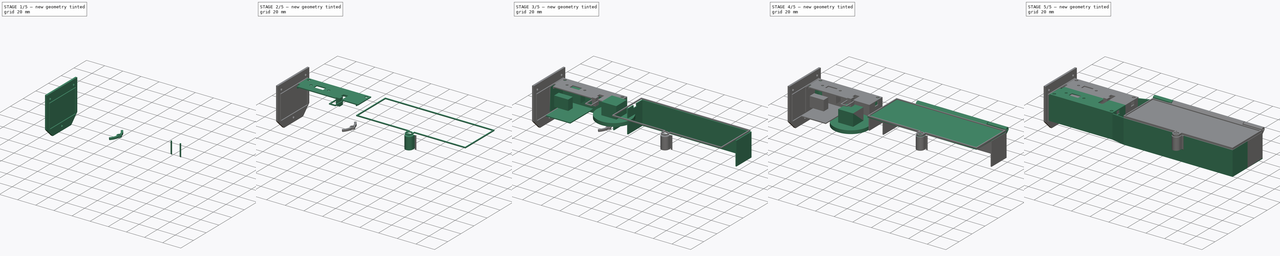
[diagram: build sequence overview — one tinted view per stage of 5, left to right]
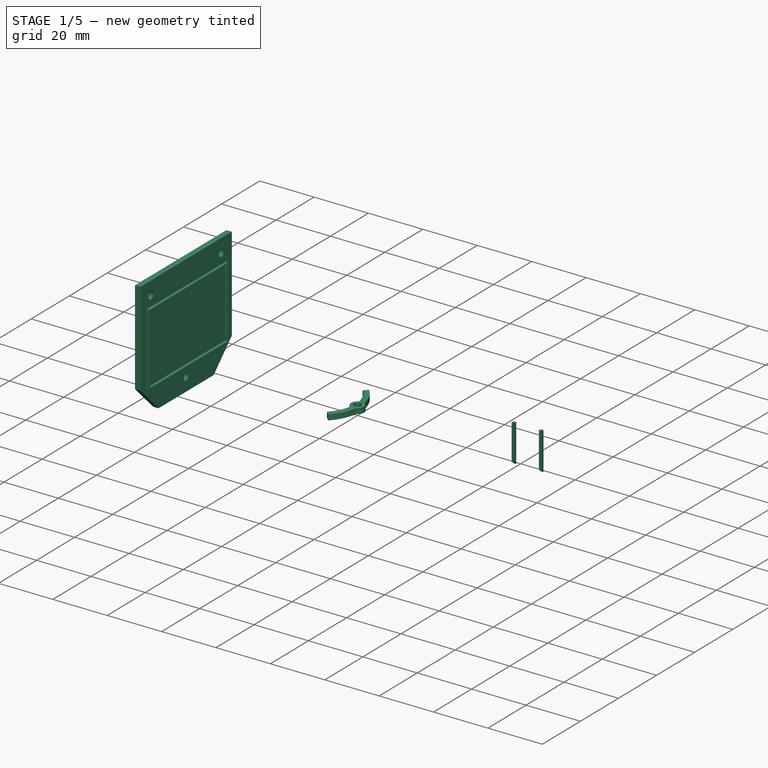
[diagram: stage 1 of 5 — iso view after this stage's code; geometry added in this stage tinted green]
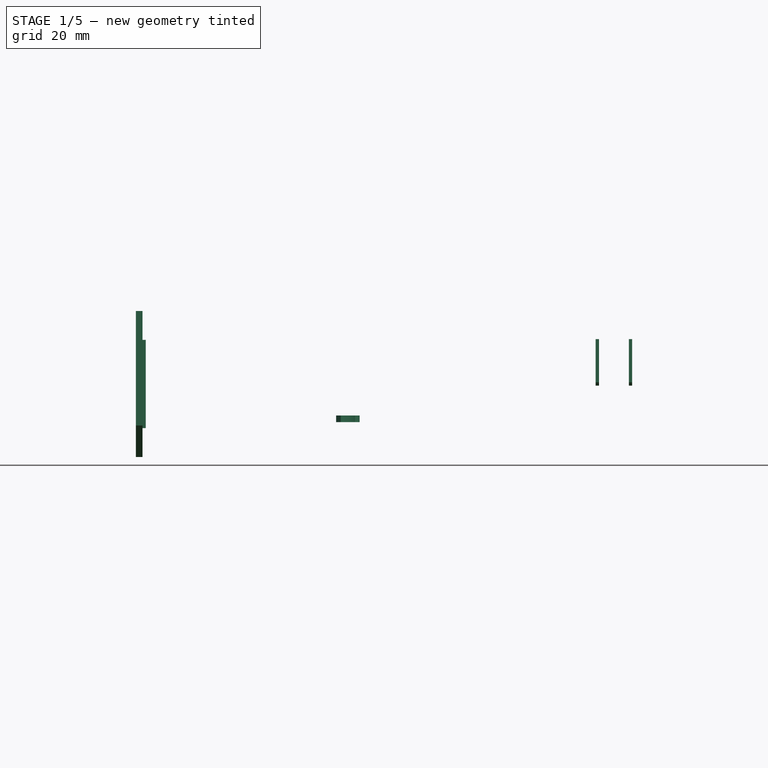
[diagram: stage 1 of 5 — front view after this stage's code; geometry added in this stage tinted green]
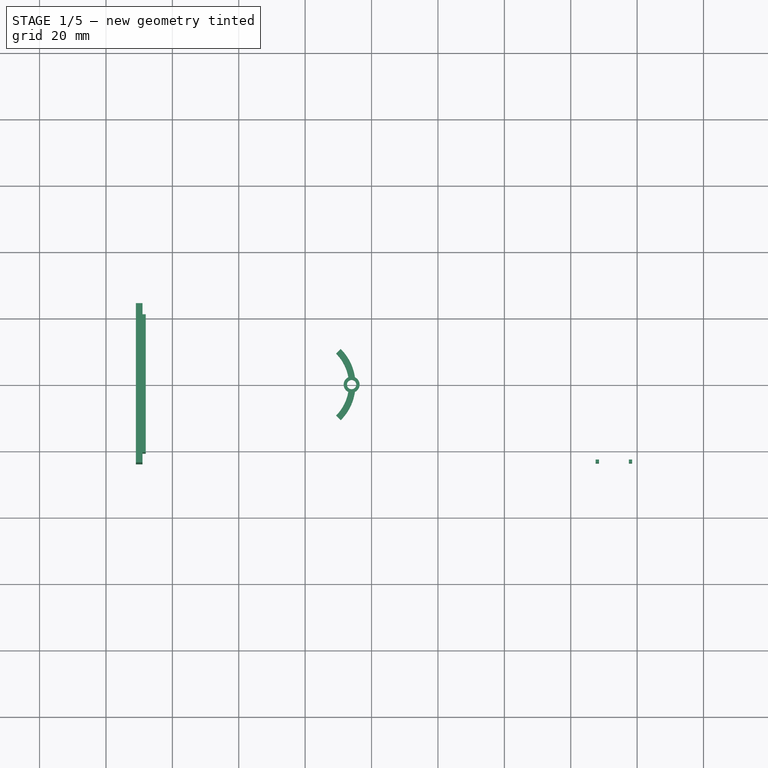
[diagram: stage 1 of 5 — top view after this stage's code; geometry added in this stage tinted green]
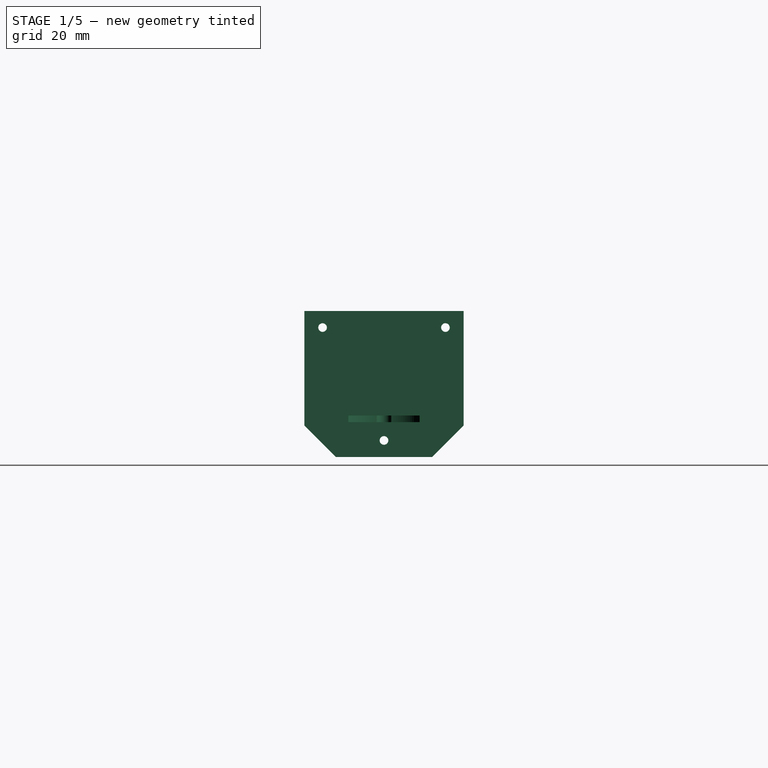
[diagram: stage 1 of 5 — right view after this stage's code; geometry added in this stage tinted green]
FCSTD DOCUMENT  (FreeCAD 0.19R24291 (Git))
Label: enclosure
License: All rights reserved
LicenseURL: http://en.wikipedia.org/wiki/All_rights_reserved
objects: Sketcher::SketchObject×29, Part::Extrusion×25, Part::Compound×11, PartDesign::FeatureBase×6, PartDesign::Body×6, Part::Box×5, Part::Cut×5, Part::Mirroring×4, Part::Sweep×2, Spreadsheet::Sheet×1, Part::Cylinder×1
note: 94 computed .brp shape members not serialized (recipe doc carries the construction recipe); baked Part::Feature solids carry a one-line shape summary decoded from their .brp

FEATURE [Sketcher::SketchObject] Sketch001
  FullyConstrained = true
  Placement = pos=(-69,0,0) rot=(0.57735,0.57735,0.57735;2.0944rad)
  expr: Constraints[13] = Spreadsheet.m2_r1
  expr: Constraints[16] = Spreadsheet.m2_r1
  sketch-geometry (8):
    g0: LineSegment StartX=0 StartY=21.5 StartZ=0 EndX=24 EndY=21.5 EndZ=0
    g1: LineSegment StartX=14.5 StartY=-22.5 StartZ=0 EndX=0 EndY=-22.5 EndZ=0
    g2: LineSegment StartX=24 StartY=21.5 StartZ=0 EndX=24 EndY=-13 EndZ=0
    g3: LineSegment StartX=24 StartY=-13 StartZ=0 EndX=14.5 EndY=-22.5 EndZ=0
    g4: Circle CenterX=18.5 CenterY=16.5 CenterZ=0 NormalX=0 NormalY=0 NormalZ=1 AngleXU=0 Radius=1.3
    g5: ArcOfCircle CenterX=8e-16 CenterY=-17.5 CenterZ=0 NormalX=0 NormalY=0 NormalZ=1 AngleXU=0 Radius=1.3 StartAngle=4.71239 EndAngle=7.85398
    g6: LineSegment StartX=0 StartY=21.5 StartZ=0 EndX=8e-16 EndY=-16.2 EndZ=0
    g7: LineSegment StartX=8e-16 StartY=-18.8 StartZ=0 EndX=8e-16 EndY=-22.5 EndZ=0
  constraints (25):
    c: Horizontal(g0)
    c: Horizontal(g1)
    c: DistanceX(g0,g0) = 24
    c: PointOnObject(g0,g-2)
    c: DistanceY(g1,g0) = 44
    c: DistanceY(g0) = 21.5
    c: Coincident(g2,g0)
    c: Vertical(g2)
    c: DistanceY(g2,g2) = 34.5
    c: Coincident(g3,g2)
    c: Coincident(g3,g1)
    c: DistanceX(g1,g2) = 9.5
    c: DistanceX(g4) = 18.5
    c: Radius(g4) = 1.3
    c: PointOnObject(g5,g-2)
    c: DistanceY(g5,g4) = 34
    c: Radius(g5) = 1.3
    c: Coincident(g6,g0)
    c: Coincident(g6,g5)
    c: Coincident(g7,g5)
    c: Coincident(g7,g1)
    c: Vertical(g7)
    c: Vertical(g5,g5)
    c: Vertical(g5,g5)
    c: DistanceY(g1,g5) = 5
FEATURE [Part::Extrusion] Extrude001
  Base = -> Sketch001
  Dir = (1,-2e-16,2e-16)
  DirMode = 2
  FaceMakerClass = Part::FaceMakerBullseye
  LengthFwd = 0
  LengthRev = 2
  Solid = true
  Symmetric = false
FEATURE [Spreadsheet::Sheet] Spreadsheet
  cells = A1=m2_r1; B1(m2_r1)=1.3; A3=m2_6_r1; B3(m2_6_r1)=1.3; A4=m2_6_r2; B4(m2_6_r2)=1.6; A6=2_56_r1; B6(r1_2_56)=1.4; A7=nut_2_56; B7(nut_2_56)=2.8
FEATURE [Sketcher::SketchObject] Sketch006
  FullyConstrained = true
  Placement = pos=(-69,0,0) rot=(0.57735,0.57735,0.57735;2.0944rad)
  sketch-geometry (8):
    g0: LineSegment StartX=0 StartY=12.3 StartZ=0 EndX=20.3 EndY=12.3 EndZ=0
    g1: LineSegment StartX=20.3 StartY=12.3 StartZ=0 EndX=20.3 EndY=-13.3 EndZ=0
    g2: LineSegment StartX=20.3 StartY=-13.3 StartZ=0 EndX=0 EndY=-13.3 EndZ=0
    g3: LineSegment StartX=0 StartY=-13.3 StartZ=0 EndX=0 EndY=-13.8 EndZ=0
    g4: LineSegment StartX=0 StartY=-13.8 StartZ=0 EndX=20.8 EndY=-13.8 EndZ=0
    g5: LineSegment StartX=20.8 StartY=-13.8 StartZ=0 EndX=20.8 EndY=12.8 EndZ=0
    g6: LineSegment StartX=20.8 StartY=12.8 StartZ=0 EndX=0 EndY=12.8 EndZ=0
    g7: LineSegment StartX=0 StartY=12.8 StartZ=0 EndX=0 EndY=12.3 EndZ=0
  constraints (24):
    c: PointOnObject(g0,g-2)
    c: Horizontal(g0)
    c: Coincident(g0,g1)
    c: Vertical(g1)
    c: Coincident(g1,g2)
    c: Horizontal(g2)
    c: Coincident(g2,g3)
    c: PointOnObject(g3,g-2)
    c: Vertical(g3)
    c: Coincident(g3,g4)
    c: Horizontal(g4)
    c: Coincident(g4,g5)
    c: Vertical(g5)
    c: Coincident(g5,g6)
    c: Horizontal(g6)
    c: Coincident(g6,g7)
    c: Coincident(g7,g0)
    c: Vertical(g7)
    c: DistanceY(g7,g7) = 0.5
    c: DistanceY(g3,g3) = 0.5
    c: DistanceX(g1,g4) = 0.5
    c: DistanceY(g1,g1) = 25.6
    c: DistanceY(g0) = 12.3
    c: DistanceX(g0,g0) = 20.3
FEATURE [Part::Extrusion] Extrude006
  Base = -> Sketch006
  Dir = (1,0,0)
  DirMode = 2
  FaceMakerClass = Part::FaceMakerBullseye
  LengthFwd = 1
  LengthRev = 0
  Solid = true
  Symmetric = false
FEATURE [Sketcher::SketchObject] Sketch019
  FullyConstrained = false
  Placement = pos=(0,0,-1) rot=(0,0,1;0rad)
  sketch-geometry (8):
    g0: LineSegment StartX=68.5 StartY=-23 StartZ=0 EndX=67.5 EndY=-23 EndZ=0
    g1: LineSegment StartX=67.5 StartY=-23 StartZ=0 EndX=67.5 EndY=-24 EndZ=0
    g2: LineSegment StartX=67.5 StartY=-24 StartZ=0 EndX=68.5 EndY=-24 EndZ=0
    g3: LineSegment StartX=68.5 StartY=-24 StartZ=0 EndX=68.5 EndY=-23 EndZ=0
    g4: LineSegment StartX=77.5 StartY=-23 StartZ=0 EndX=78.5 EndY=-23 EndZ=0
    g5: LineSegment StartX=78.5 StartY=-23 StartZ=0 EndX=78.5 EndY=-24 EndZ=0
    g6: LineSegment StartX=78.5 StartY=-24 StartZ=0 EndX=77.5 EndY=-24 EndZ=0
    g7: LineSegment StartX=77.5 StartY=-24 StartZ=0 EndX=77.5 EndY=-23 EndZ=0
  constraints (23):
    c: Coincident(g0,g1)
    c: Coincident(g1,g2)
    c: Coincident(g2,g3)
    c: Coincident(g3,g0)
    c: Horizontal(g0)
    c: Horizontal(g2)
    c: Vertical(g1)
    c: Vertical(g3)
    c: Coincident(g4,g5)
    c: Coincident(g5,g6)
    c: Coincident(g6,g7)
    c: Coincident(g7,g4)
    c: Horizontal(g4)
    c: Horizontal(g6)
    c: Vertical(g5)
    c: Vertical(g7)
    c: DistanceX(g6,g4) = 1
    c: DistanceY(g6,g4) = 1
    c: DistanceX(g1,g0) = 1
    c: DistanceY(g1,g0) = 1
    c: DistanceX(g0,g4) = 9
    c: DistanceX(g0) = 68.5
    c: DistanceY(g0) = -23
FEATURE [Part::Extrusion] Extrude019
  Base = -> Sketch019
  Dir = (0,0,1)
  DirMode = 2
  FaceMakerClass = Part::FaceMakerBullseye
  LengthFwd = 14
  LengthRev = 0
  Solid = true
  Symmetric = false
FEATURE [Part::Compound] Compound009
  Links = -> [Extrude006,Extrude001]
FEATURE [PartDesign::FeatureBase] Clone004
  BaseFeature = -> Compound009
FEATURE [PartDesign::Body] Body004
  BaseFeature = -> Compound009
  Group = -> [Clone004]
  Origin = -> Origin004
  Tip = -> Clone004
FEATURE [Part::Mirroring] Part__Mirroring002  label="Body004 (Mirror #3)"
  Base = (0,0,0)
  Normal = (0,1,0)
  Source = -> Body004
FEATURE [Part::Compound] Compound010  label="firewall"
  Links = -> [Part__Mirroring002,Compound009]
FEATURE [Sketcher::SketchObject] Sketch027
  FullyConstrained = false
  Placement = pos=(84,0,0) rot=(0.57735,0.57735,0.57735;2.0944rad)
  sketch-geometry (3):
    g0: LineSegment StartX=-25 StartY=1 StartZ=0 EndX=-22 EndY=-2 EndZ=0
    g1: LineSegment StartX=-22 StartY=-2 StartZ=0 EndX=-25 EndY=-2 EndZ=0
    g2: LineSegment StartX=-25 StartY=-2 StartZ=0 EndX=-25 EndY=1 EndZ=0
  constraints (5):
    c: Coincident(g0,g1)
    c: Horizontal(g1)
    c: Coincident(g1,g2)
    c: Coincident(g2,g0)
    c: Vertical(g2)
FEATURE [Part::Extrusion] Extrude023
  Base = -> Sketch027
  Dir = (1,-2e-16,2e-16)
  DirMode = 2
  FaceMakerClass = Part::FaceMakerBullseye
  LengthFwd = 0
  LengthRev = 20
  Solid = true
  Symmetric = false
FEATURE [Part::Cut] Cut004
  Base = -> Extrude019
  Tool = -> Extrude023
FEATURE [Sketcher::SketchObject] Sketch028
  FullyConstrained = true
  Placement = pos=(0,0,-12) rot=(0,0,1;0rad)
  expr: Constraints[17] = Spreadsheet.r1_2_56 + 1
  expr: Constraints[16] = Spreadsheet.r1_2_56 + 1
  expr: Constraints[15] = Spreadsheet.r1_2_56
  sketch-geometry (9):
    g0: Circle CenterX=-34 CenterY=0 CenterZ=0 NormalX=0 NormalY=0 NormalZ=1 AngleXU=0 Radius=1.4
    g1: ArcOfCircle CenterX=-34 CenterY=0 CenterZ=0 NormalX=0 NormalY=0 NormalZ=1 AngleXU=0 Radius=2.4 StartAngle=2.00057 EndAngle=4.28261
    g2: ArcOfCircle CenterX=-34 CenterY=0 CenterZ=0 NormalX=0 NormalY=0 NormalZ=1 AngleXU=0 Radius=2.4 StartAngle=5.14216 EndAngle=7.42421
    g3: ArcOfCircle CenterX=-20 CenterY=0 CenterZ=0 NormalX=0 NormalY=0 NormalZ=1 AngleXU=0 Radius=13.1818 StartAngle=2.35619 EndAngle=2.97532
    g4: ArcOfCircle CenterX=-20 CenterY=0 CenterZ=0 NormalX=0 NormalY=0 NormalZ=1 AngleXU=0 Radius=15.1578 StartAngle=2.35619 EndAngle=2.99716
    g5: ArcOfCircle CenterX=-20 CenterY=0 CenterZ=0 NormalX=0 NormalY=0 NormalZ=1 AngleXU=0 Radius=13.1818 StartAngle=3.30787 EndAngle=3.92699
    g6: ArcOfCircle CenterX=-20 CenterY=0 CenterZ=0 NormalX=0 NormalY=0 NormalZ=1 AngleXU=0 Radius=15.1578 StartAngle=3.28603 EndAngle=3.92699
    g7: LineSegment StartX=-30.7182 StartY=10.7182 StartZ=0 EndX=-29.3209 EndY=9.32094 EndZ=0
    g8: LineSegment StartX=-30.7182 StartY=-10.7182 StartZ=0 EndX=-29.3209 EndY=-9.32094 EndZ=0
  constraints (28):
    c: PointOnObject(g0,g-1)
    c: Coincident(g1,g0)
    c: Coincident(g2,g0)
    c: PointOnObject(g3,g-1)
    c: Coincident(g3,g2)
    c: Coincident(g4,g3)
    c: Coincident(g4,g1)
    c: Coincident(g5,g3)
    c: Coincident(g5,g2)
    c: Coincident(g6,g3)
    c: Coincident(g6,g1)
    c: Coincident(g7,g4)
    c: Coincident(g7,g3)
    c: Coincident(g8,g6)
    c: Coincident(g8,g5)
    c: Radius(g0) = 1.4
    c: Radius(g2) = 2.4
    c: Radius(g1) = 2.4
    c: DistanceX(g0) = -34
    c: Horizontal(g1,g2)
    c: Horizontal(g1,g2)
    c: DistanceX(g1,g2) = 2
    c: DistanceX(g1,g2) = 2
    c: PointOnObject(g3,g8)
    c: Angle(g-1,g8,g3) = 0.785398
    c: PointOnObject(g3,g7)
    c: Angle(g7,g-1,g3) = 0.785398
    c: DistanceX(g3) = -20
FEATURE [Part::Extrusion] Extrude024
  Base = -> Sketch028
  Dir = (0,0,1)
  DirMode = 2
  FaceMakerClass = Part::FaceMakerBullseye
  LengthFwd = 2
  LengthRev = 0
  Solid = true
  Symmetric = false
FEATURE [PartDesign::FeatureBase] Clone005
  BaseFeature = -> Extrude024
FEATURE [PartDesign::Body] Body005
  Group = -> [Clone005]
  Origin = -> Origin005
  Tip = -> Clone005
FEATURE [Part::Mirroring] Part__Mirroring003  label="Body005 (Mirror #4)"
  Base = (-20,0,0)
  Normal = (1,0,0)
  Source = -> Body005
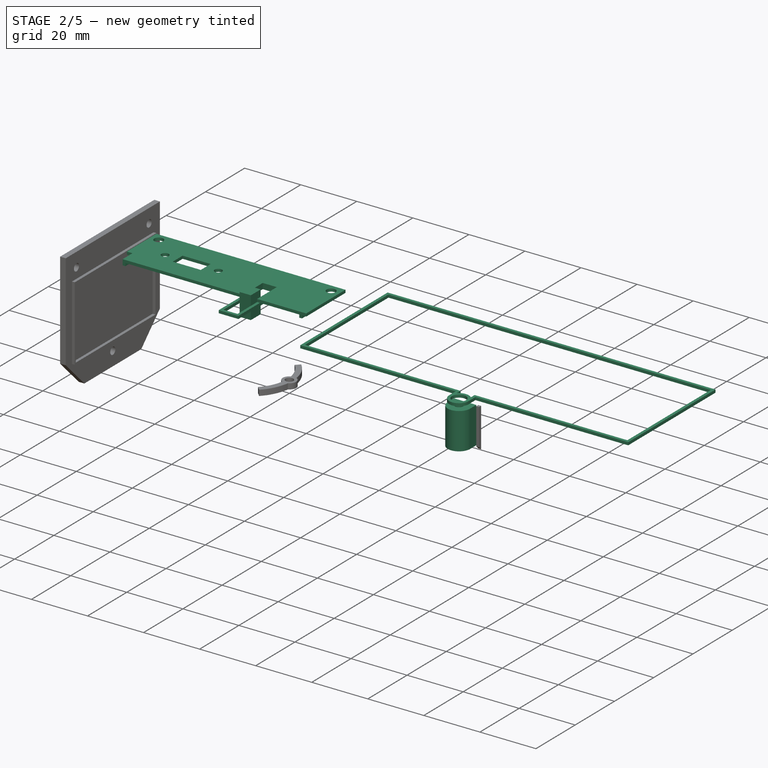
[diagram: stage 2 of 5 — iso view after this stage's code; geometry added in this stage tinted green]
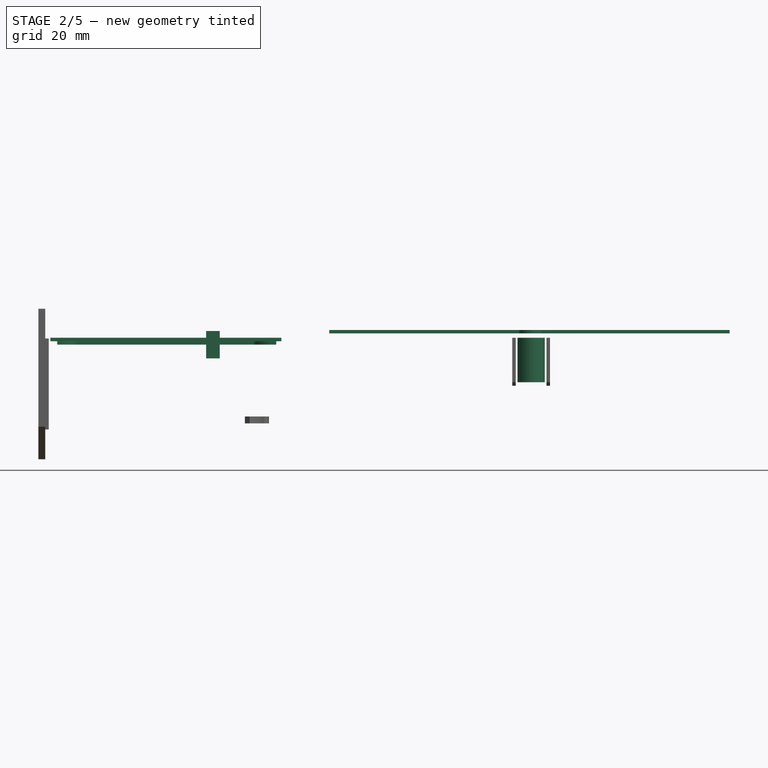
[diagram: stage 2 of 5 — front view after this stage's code; geometry added in this stage tinted green]
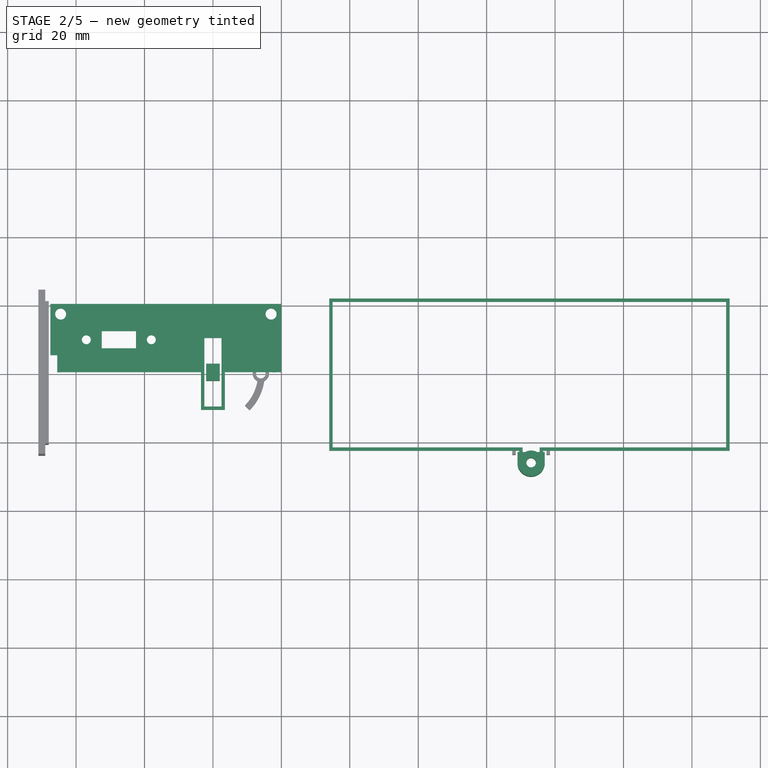
[diagram: stage 2 of 5 — top view after this stage's code; geometry added in this stage tinted green]
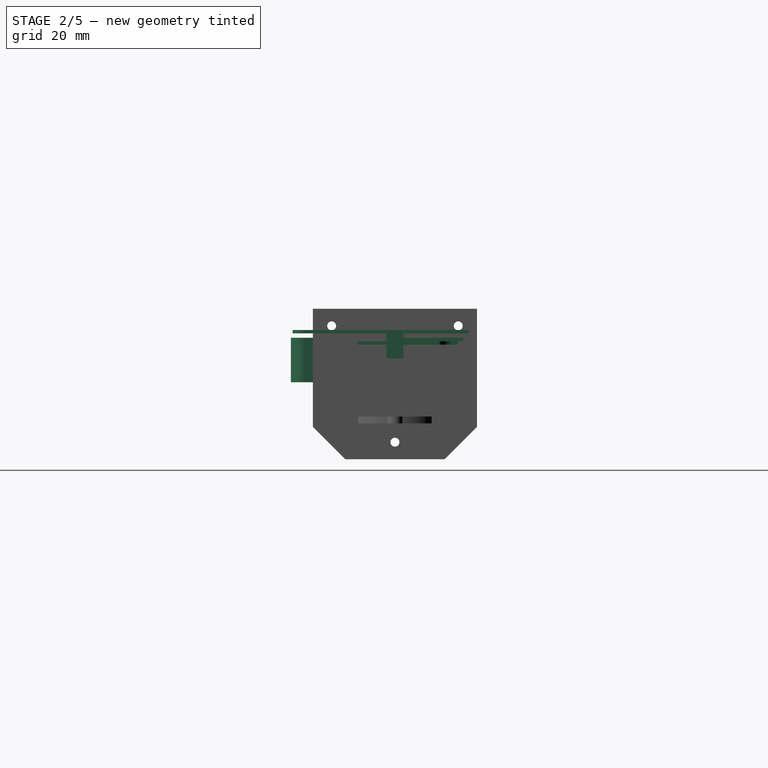
[diagram: stage 2 of 5 — right view after this stage's code; geometry added in this stage tinted green]
FEATURE [Sketcher::SketchObject] Sketch007
  FullyConstrained = false
  Placement = pos=(0,0,12) rot=(0,0,1;0rad)
  expr: Constraints[6] = Spreadsheet.m2_6_r2
  expr: Constraints[9] = Spreadsheet.m2_6_r2
  expr: Constraints[22] = Spreadsheet.m2_r1
  expr: Constraints[23] = Spreadsheet.m2_r1
  sketch-geometry (18):
    g0: LineSegment StartX=-67.5 StartY=20 StartZ=0 EndX=0 EndY=20 EndZ=0
    g1: LineSegment StartX=0 StartY=20 StartZ=0 EndX=0 EndY=0 EndZ=0
    g2: Circle CenterX=-3 CenterY=17 CenterZ=0 NormalX=0 NormalY=0 NormalZ=1 AngleXU=0 Radius=1.6
    g3: Circle CenterX=-64.5 CenterY=17 CenterZ=0 NormalX=0 NormalY=0 NormalZ=1 AngleXU=0 Radius=1.6
    g4: LineSegment StartX=-52.5 StartY=12 StartZ=0 EndX=-42.5 EndY=12 EndZ=0
    g5: LineSegment StartX=-42.5 StartY=12 StartZ=0 EndX=-42.5 EndY=7 EndZ=0
    g6: LineSegment StartX=-42.5 StartY=7 StartZ=0 EndX=-52.5 EndY=7 EndZ=0
    g7: LineSegment StartX=-52.5 StartY=7 StartZ=0 EndX=-52.5 EndY=12 EndZ=0
    g8: Circle CenterX=-38 CenterY=9.5 CenterZ=0 NormalX=0 NormalY=0 NormalZ=1 AngleXU=0 Radius=1.3
    g9: Circle CenterX=-57 CenterY=9.5 CenterZ=0 NormalX=0 NormalY=0 NormalZ=1 AngleXU=0 Radius=1.3
    g10: LineSegment StartX=-65.5 StartY=0 StartZ=0 EndX=-22.5 EndY=0 EndZ=0
    g11: LineSegment StartX=-22.5 StartY=0 StartZ=0 EndX=-22.5 EndY=10 EndZ=0
    g12: LineSegment StartX=-22.5 StartY=10 StartZ=0 EndX=-17.5 EndY=10 EndZ=0
    g13: LineSegment StartX=-17.5 StartY=10 StartZ=0 EndX=-17.5 EndY=0 EndZ=0
    g14: LineSegment StartX=-17.5 StartY=0 StartZ=0 EndX=0 EndY=0 EndZ=0
    g15: LineSegment StartX=-67.5 StartY=20 StartZ=0 EndX=-67.5 EndY=5 EndZ=0
    g16: LineSegment StartX=-67.5 StartY=5 StartZ=0 EndX=-65.5 EndY=5 EndZ=0
    g17: LineSegment StartX=-65.5 StartY=5 StartZ=0 EndX=-65.5 EndY=0 EndZ=0
  constraints (52):
    c: Coincident(g0,g1)
    c: Horizontal(g0)
    c: Vertical(g1)
    c: DistanceX(g0,g0) = 67.5
    c: Coincident(g1,g-1)
    c: DistanceY(g1,g1) = 20
    c: Radius(g2) = 1.6
    c: DistanceX(g2,g0) = 3
    c: DistanceY(g2,g0) = 3
    c: Radius(g3) = 1.6
    c: DistanceX(g3,g0) = -3
    c: DistanceY(g3,g0) = 3
    c: Coincident(g4,g5)
    c: Coincident(g5,g6)
    c: Coincident(g6,g7)
    c: Coincident(g7,g4)
    c: Horizontal(g4)
    c: Horizontal(g6)
    c: Vertical(g5)
    c: Vertical(g7)
    c: DistanceX(g6,g4) = 10
    c: DistanceY(g6,g4) = 5
    c: Radius(g8) = 1.3
    c: Radius(g9) = 1.3
    c: DistanceX(g9,g8) = 19
    c: DistanceX(g4,g8) = 4.5
    c: DistanceY(g5,g8) = 2.5
    c: Horizontal(g9,g8)
    c: DistanceY(g5) = 7
    c: PointOnObject(g10,g-1)
    c: Horizontal(g10)
    c: Coincident(g10,g11)
    c: Vertical(g11)
    c: Coincident(g11,g12)
    c: Horizontal(g12)
    c: Coincident(g12,g13)
    c: PointOnObject(g13,g-1)
    c: Vertical(g13)
    c: Coincident(g13,g14)
    c: Coincident(g14,g1)
    c: DistanceX(g12,g12) = 5
    c: DistanceX(g14,g14) = 17.5
    c: DistanceY(g13,g13) = 10
    c: Coincident(g0,g15)
    c: Vertical(g15)
    c: Coincident(g15,g16)
    c: Horizontal(g16)
    c: Coincident(g16,g17)
    c: Vertical(g17)
    c: Coincident(g10,g17)
    c: DistanceX(g16,g16) = 2
    c: DistanceY(g17,g17) = 5
FEATURE [Part::Extrusion] Extrude007
  Base = -> Sketch007
  Dir = (0,0,1)
  DirMode = 2
  FaceMakerClass = Part::FaceMakerBullseye
  LengthFwd = 1
  LengthRev = 0
  Solid = true
  Symmetric = false
FEATURE [Sketcher::SketchObject] Sketch016
  FullyConstrained = true
  expr: Constraints[17] = Spreadsheet.nut_2_56
  sketch-geometry (11):
    g0: LineSegment StartX=75.8 StartY=-26.4 StartZ=0 EndX=74.4 EndY=-23.9751 EndZ=0
    g1: LineSegment StartX=74.4 StartY=-23.9751 StartZ=0 EndX=71.6 EndY=-23.9751 EndZ=0
    g2: LineSegment StartX=71.6 StartY=-23.9751 StartZ=0 EndX=70.2 EndY=-26.4 EndZ=0
    g3: LineSegment StartX=70.2 StartY=-26.4 StartZ=0 EndX=71.6 EndY=-28.8249 EndZ=0
    g4: LineSegment StartX=71.6 StartY=-28.8249 StartZ=0 EndX=74.4 EndY=-28.8249 EndZ=0
    g5: LineSegment StartX=74.4 StartY=-28.8249 StartZ=0 EndX=75.8 EndY=-26.4 EndZ=0
    g6: Circle CenterX=73 CenterY=-26.4 CenterZ=0 NormalX=0 NormalY=0 NormalZ=1 AngleXU=0 Radius=2.8
    g7: ArcOfCircle CenterX=73 CenterY=-26.4 CenterZ=0 NormalX=0 NormalY=0 NormalZ=1 AngleXU=0 Radius=4 StartAngle=3.14159 EndAngle=6.28319
    g8: LineSegment StartX=69 StartY=-23.3 StartZ=0 EndX=77 EndY=-23.3 EndZ=0
    g9: LineSegment StartX=77 StartY=-23.3 StartZ=0 EndX=77 EndY=-26.4 EndZ=0
    g10: LineSegment StartX=69 StartY=-23.3 StartZ=0 EndX=69 EndY=-26.4 EndZ=0
  constraints (29):
    c: Coincident(g0,g1)
    c: Coincident(g1,g2)
    c: Coincident(g2,g3)
    c: Coincident(g3,g4)
    c: Coincident(g4,g5)
    c: Coincident(g5,g0)
    c: Equal(g0, g1-g5) x5
    c: PointOnObject(g0,g6)
    c: PointOnObject(g1,g6)
    c: PointOnObject(g2,g6)
    c: PointOnObject(g3,g6)
    c: PointOnObject(g4,g6)
    c: PointOnObject(g5,g6)
    c: Radius(g6) = 2.8
    c: Horizontal(g1)
    c: Coincident(g7,g6)
    c: Horizontal(g7,g7)
    c: Horizontal(g7,g7)
    c: Radius(g7) = 4
    c: Horizontal(g8)
    c: Coincident(g9,g8)
    c: Coincident(g9,g7)
    c: Vertical(g9)
    c: Coincident(g10,g8)
    c: Coincident(g10,g7)
    c: Vertical(g10)
    c: DistanceY(g8) = -23.3
    c: DistanceX(g7) = 73
    c: DistanceY(g7) = -26.4
FEATURE [Sketcher::SketchObject] Sketch017
  FullyConstrained = true
  Placement = pos=(0,0,14.3) rot=(0,0,1;0rad)
  sketch-geometry (2):
    g0: Circle CenterX=73 CenterY=-26.4 CenterZ=0 NormalX=0 NormalY=0 NormalZ=1 AngleXU=0 Radius=2.5
    g1: Circle CenterX=73 CenterY=-26.4 CenterZ=0 NormalX=0 NormalY=0 NormalZ=1 AngleXU=0 Radius=3.5
  constraints (5):
    c: Radius(g0) = 2.5
    c: Coincident(g1,g0)
    c: Radius(g1) = 3.5
    c: DistanceX(g0) = 73
    c: DistanceY(g0) = -26.4
FEATURE [Part::Extrusion] Extrude016
  Base = -> Sketch017
  Dir = (0,0,1)
  DirMode = 2
  FaceMakerClass = Part::FaceMakerBullseye
  LengthFwd = 1
  LengthRev = 0
  Solid = true
  Symmetric = false
FEATURE [Part::Extrusion] Extrude017
  Base = -> Sketch016
  Dir = (0,0,1)
  DirMode = 2
  FaceMakerClass = Part::FaceMakerBullseye
  LengthFwd = 3
  LengthRev = 0
  Solid = true
  Symmetric = false
FEATURE [Sketcher::SketchObject] Sketch018
  FullyConstrained = true
  Placement = pos=(0,0,3) rot=(0,0,1;0rad)
  expr: Constraints[0] = Spreadsheet.r1_2_56
  sketch-geometry (5):
    g0: Circle CenterX=73 CenterY=-26.4 CenterZ=0 NormalX=0 NormalY=0 NormalZ=1 AngleXU=0 Radius=1.4
    g1: ArcOfCircle CenterX=73 CenterY=-26.4 CenterZ=0 NormalX=0 NormalY=0 NormalZ=1 AngleXU=0 Radius=4 StartAngle=3.14159 EndAngle=6.28319
    g2: LineSegment StartX=69 StartY=-23.3 StartZ=0 EndX=77 EndY=-23.3 EndZ=0
    g3: LineSegment StartX=77 StartY=-23.3 StartZ=0 EndX=77 EndY=-26.4 EndZ=0
    g4: LineSegment StartX=69 StartY=-23.3 StartZ=0 EndX=69 EndY=-26.4 EndZ=0
  constraints (15):
    c: Radius(g0) = 1.4
    c: DistanceX(g0) = 73
    c: DistanceY(g0) = -26.4
    c: Coincident(g1,g0)
    c: Horizontal(g2)
    c: Coincident(g3,g2)
    c: Coincident(g3,g1)
    c: Vertical(g3)
    c: Coincident(g4,g2)
    c: Coincident(g4,g1)
    c: Vertical(g4)
    c: Horizontal(g1,g0)
    c: Horizontal(g0,g1)
    c: Radius(g1) = 4
    c: DistanceY(g2) = -23.3
FEATURE [Part::Extrusion] Extrude018
  Base = -> Sketch018
  Dir = (0,0,1)
  DirMode = 2
  FaceMakerClass = Part::FaceMakerBullseye
  LengthFwd = 10
  LengthRev = 0
  Solid = true
  Symmetric = false
FEATURE [Part::Compound] Compound006  label="latch"
  Links = -> [Extrude017,Extrude018]
FEATURE [Sketcher::SketchObject] Sketch020
  FullyConstrained = true
  Placement = pos=(0,0,14.3) rot=(0,0,1;0rad)
  sketch-geometry (8):
    g0: LineSegment StartX=14 StartY=21.5 StartZ=0 EndX=14 EndY=-23 EndZ=0
    g1: LineSegment StartX=14 StartY=-23 StartZ=0 EndX=69.5 EndY=-23 EndZ=0
    g2: LineSegment StartX=69.5 StartY=-23 StartZ=0 EndX=69.5 EndY=-26.4 EndZ=0
    g3: LineSegment StartX=76.5 StartY=-26.4 StartZ=0 EndX=76.5 EndY=-23 EndZ=0
    g4: LineSegment StartX=76.5 StartY=-23 StartZ=0 EndX=131 EndY=-23 EndZ=0
    g5: LineSegment StartX=131 StartY=-23 StartZ=0 EndX=131 EndY=21.5 EndZ=0
    g6: ArcOfCircle CenterX=73 CenterY=-26.4 CenterZ=0 NormalX=0 NormalY=0 NormalZ=1 AngleXU=0 Radius=3.5 StartAngle=3.14159 EndAngle=6.28319
    g7: LineSegment StartX=14 StartY=21.5 StartZ=0 EndX=131 EndY=21.5 EndZ=0
  constraints (25):
    c: Vertical(g0)
    c: Coincident(g0,g1)
    c: Horizontal(g1)
    c: Coincident(g1,g2)
    c: Vertical(g2)
    c: Vertical(g3)
    c: Coincident(g3,g4)
    c: Horizontal(g4)
    c: Coincident(g4,g5)
    c: Vertical(g5)
    c: Coincident(g6,g2)
    c: Coincident(g6,g3)
    c: Horizontal(g2,g6)
    c: Horizontal(g6,g3)
    c: Radius(g6) = 3.5
    c: DistanceY(g6) = -26.4
    c: DistanceX(g6) = 73
    c: DistanceY(g0,g0) = 44.5
    c: Horizontal(g3,g1)
    c: Coincident(g7,g0)
    c: Coincident(g7,g5)
    c: Horizontal(g7)
    c: DistanceX(g7,g7) = 117
    c: DistanceX(g0) = 14
    c: DistanceY(g0) = 21.5
FEATURE [Sketcher::SketchObject] Sketch021
  FullyConstrained = true
  Placement = pos=(121,0,0) rot=(0.57735,0.57735,0.57735;2.0944rad)
  sketch-geometry (4):
    g0: LineSegment StartX=21.5 StartY=14.3 StartZ=0 EndX=20.5 EndY=14.3 EndZ=0
    g1: LineSegment StartX=20.5 StartY=14.3 StartZ=0 EndX=20.5 EndY=15.3 EndZ=0
    g2: LineSegment StartX=20.5 StartY=15.3 StartZ=0 EndX=21.5 EndY=15.3 EndZ=0
    g3: LineSegment StartX=21.5 StartY=15.3 StartZ=0 EndX=21.5 EndY=14.3 EndZ=0
  constraints (12):
    c: Coincident(g0,g1)
    c: Coincident(g1,g2)
    c: Coincident(g2,g3)
    c: Coincident(g3,g0)
    c: Horizontal(g0)
    c: Horizontal(g2)
    c: Vertical(g1)
    c: Vertical(g3)
    c: DistanceX(g0,g2) = 1
    c: DistanceY(g0,g2) = 1
    c: DistanceY(g0) = 14.3
    c: DistanceX(g0) = 21.5
FEATURE [Part::Sweep] Sweep
  Frenet = false
  Sections = -> [Sketch021]
  Solid = true
  Spine = -> Sketch020
  Transition = 1
FEATURE [Sketcher::SketchObject] Sketch022
  FullyConstrained = true
  Placement = pos=(0,0,12) rot=(0,0,1;0rad)
  expr: Constraints[20] = Spreadsheet.m2_6_r2 + 2.4
  expr: Constraints[23] = Spreadsheet.m2_6_r2 + 2.4
  sketch-geometry (9):
    g0: LineSegment StartX=-60.5 StartY=18.5 StartZ=0 EndX=-7 EndY=18.5 EndZ=0
    g1: LineSegment StartX=-65.5 StartY=13 StartZ=0 EndX=-65.5 EndY=0 EndZ=0
    g2: LineSegment StartX=-1.5 StartY=13 StartZ=0 EndX=-1.5 EndY=0 EndZ=0
    g3: ArcOfCircle CenterX=-3 CenterY=17 CenterZ=0 NormalX=0 NormalY=0 NormalZ=1 AngleXU=0 Radius=4 StartAngle=3.14159 EndAngle=4.71239
    g4: LineSegment StartX=-7 StartY=18.5 StartZ=0 EndX=-7 EndY=17 EndZ=0
    g5: LineSegment StartX=-1.5 StartY=13 StartZ=0 EndX=-3 EndY=13 EndZ=0
    g6: ArcOfCircle CenterX=-64.5 CenterY=17 CenterZ=0 NormalX=0 NormalY=0 NormalZ=1 AngleXU=0 Radius=4 StartAngle=4.71239 EndAngle=6.28319
    g7: LineSegment StartX=-65.5 StartY=13 StartZ=0 EndX=-64.5 EndY=13 EndZ=0
    g8: LineSegment StartX=-60.5 StartY=18.5 StartZ=0 EndX=-60.5 EndY=17 EndZ=0
  constraints (30):
    c: Horizontal(g0)
    c: Vertical(g1)
    c: PointOnObject(g2,g-1)
    c: Vertical(g2)
    c: Horizontal(g3,g3)
    c: Vertical(g3,g3)
    c: Coincident(g4,g0)
    c: Coincident(g4,g3)
    c: Vertical(g4)
    c: Coincident(g5,g2)
    c: Coincident(g5,g3)
    c: Horizontal(g5)
    c: Vertical(g6,g6)
    c: Horizontal(g6,g6)
    c: Coincident(g7,g1)
    c: Coincident(g7,g6)
    c: Horizontal(g7)
    c: Coincident(g8,g0)
    c: Coincident(g8,g6)
    c: Vertical(g8)
    c: Radius(g6) = 4
    c: DistanceX(g6) = -64.5
    c: DistanceY(g6) = 17
    c: Radius(g3) = 4
    c: DistanceX(g3) = -3
    c: Horizontal(g3,g6)
    c: DistanceY(g0) = 18.5
    c: DistanceX(g2) = -1.5
    c: DistanceX(g1) = -65.5
    c: PointOnObject(g1,g-1)
FEATURE [Sketcher::SketchObject] Sketch023
  FullyConstrained = true
  Placement = pos=(-0.01,3,0) rot=(1,0,0;1.5708rad)
  sketch-geometry (4):
    g0: LineSegment StartX=-65.5 StartY=12 StartZ=0 EndX=-64.5 EndY=12 EndZ=0
    g1: LineSegment StartX=-64.5 StartY=12 StartZ=0 EndX=-64.5 EndY=11 EndZ=0
    g2: LineSegment StartX=-64.5 StartY=11 StartZ=0 EndX=-65.5 EndY=11 EndZ=0
    g3: LineSegment StartX=-65.5 StartY=11 StartZ=0 EndX=-65.5 EndY=12 EndZ=0
  constraints (12):
    c: Coincident(g0,g1)
    c: Coincident(g1,g2)
    c: Coincident(g2,g3)
    c: Coincident(g3,g0)
    c: Horizontal(g0)
    c: Horizontal(g2)
    c: Vertical(g1)
    c: Vertical(g3)
    c: DistanceX(g2,g0) = 1
    c: DistanceY(g2,g0) = 1
    c: DistanceX(g0) = -65.5
    c: DistanceY(g0) = 12
FEATURE [Part::Sweep] Sweep001
  Frenet = false
  Sections = -> [Sketch023]
  Solid = true
  Spine = -> Sketch022
  Transition = 1
FEATURE [Part::Compound] Compound007
  Links = -> [Extrude007,Sweep001]
FEATURE [Sketcher::SketchObject] Sketch024
  FullyConstrained = true
  Placement = pos=(0,0,12) rot=(0,0,1;0rad)
  sketch-geometry (8):
    g0: LineSegment StartX=-22.5 StartY=10 StartZ=0 EndX=-17.5 EndY=10 EndZ=0
    g1: LineSegment StartX=-17.5 StartY=10 StartZ=0 EndX=-17.5 EndY=-10 EndZ=0
    g2: LineSegment StartX=-17.5 StartY=-10 StartZ=0 EndX=-22.5 EndY=-10 EndZ=0
    g3: LineSegment StartX=-22.5 StartY=-10 StartZ=0 EndX=-22.5 EndY=10 EndZ=0
    g4: LineSegment StartX=-23.5 StartY=11 StartZ=0 EndX=-16.5 EndY=11 EndZ=0
    g5: LineSegment StartX=-16.5 StartY=11 StartZ=0 EndX=-16.5 EndY=-11 EndZ=0
    g6: LineSegment StartX=-16.5 StartY=-11 StartZ=0 EndX=-23.5 EndY=-11 EndZ=0
    g7: LineSegment StartX=-23.5 StartY=-11 StartZ=0 EndX=-23.5 EndY=11 EndZ=0
  constraints (24):
    c: Coincident(g0,g1)
    c: Coincident(g1,g2)
    c: Coincident(g2,g3)
    c: Coincident(g3,g0)
    c: Horizontal(g0)
    c: Horizontal(g2)
    c: Vertical(g1)
    c: Vertical(g3)
    c: Coincident(g4,g5)
    c: Coincident(g5,g6)
    c: Coincident(g6,g7)
    c: Coincident(g7,g4)
    c: Horizontal(g4)
    c: Horizontal(g6)
    c: Vertical(g5)
    c: Vertical(g7)
    c: DistanceX(g2,g0) = 5
    c: DistanceY(g2,g0) = 20
    c: DistanceX(g0,g4) = 1
    c: DistanceY(g0,g4) = 1
    c: DistanceX(g6,g2) = 1
    c: DistanceY(g6,g2) = 1
    c: DistanceX(g4) = -16.5
    c: DistanceY(g4) = 11
FEATURE [Part::Extrusion] Extrude020
  Base = -> Sketch024
  Dir = (0,0,1)
  DirMode = 2
  FaceMakerClass = Part::FaceMakerBullseye
  LengthFwd = 0
  LengthRev = 1
  Solid = true
  Symmetric = false
FEATURE [Sketcher::SketchObject] Sketch025
  FullyConstrained = true
  Placement = pos=(0,0,7) rot=(0,0,1;0rad)
  sketch-geometry (8):
    g0: LineSegment StartX=-22 StartY=2.5 StartZ=0 EndX=-18 EndY=2.5 EndZ=0
    g1: LineSegment StartX=-18 StartY=2.5 StartZ=0 EndX=-18 EndY=-2.5 EndZ=0
    g2: LineSegment StartX=-18 StartY=-2.5 StartZ=0 EndX=-22 EndY=-2.5 EndZ=0
    g3: LineSegment StartX=-22 StartY=-2.5 StartZ=0 EndX=-22 EndY=2.5 EndZ=0
    g4: LineSegment StartX=-20.8 StartY=1.3 StartZ=0 EndX=-19.2 EndY=1.3 EndZ=0
    g5: LineSegment StartX=-19.2 StartY=1.3 StartZ=0 EndX=-19.2 EndY=-1.3 EndZ=0
    g6: LineSegment StartX=-19.2 StartY=-1.3 StartZ=0 EndX=-20.8 EndY=-1.3 EndZ=0
    g7: LineSegment StartX=-20.8 StartY=-1.3 StartZ=0 EndX=-20.8 EndY=1.3 EndZ=0
  constraints (24):
    c: Coincident(g0,g1)
    c: Coincident(g1,g2)
    c: Coincident(g2,g3)
    c: Coincident(g3,g0)
    c: Horizontal(g0)
    c: Horizontal(g2)
    c: Vertical(g1)
    c: Vertical(g3)
    c: DistanceX(g2,g0) = 4
    c: DistanceY(g2,g0) = 5
    c: Coincident(g4,g5)
    c: Coincident(g5,g6)
    c: Coincident(g6,g7)
    c: Coincident(g7,g4)
    c: Horizontal(g4)
    c: Horizontal(g6)
    c: Vertical(g5)
    c: Vertical(g7)
    c: DistanceX(g6,g6) = 1.6
    c: DistanceY(g5,g5) = 2.6
    c: DistanceX(g4) = -19.2
    c: DistanceY(g4) = 1.3
    c: DistanceX(g4,g0) = 1.2
    c: DistanceY(g0) = 2.5
FEATURE [Part::Extrusion] Extrude021
  Base = -> Sketch025
  Dir = (0,0,1)
  DirMode = 2
  FaceMakerClass = Part::FaceMakerBullseye
  LengthFwd = 4
  LengthRev = 0
  Solid = true
  Symmetric = false
FEATURE [Sketcher::SketchObject] Sketch026
  FullyConstrained = true
  Placement = pos=(0,0,11) rot=(0,0,1;0rad)
  sketch-geometry (4):
    g0: LineSegment StartX=-22 StartY=2.5 StartZ=0 EndX=-18 EndY=2.5 EndZ=0
    g1: LineSegment StartX=-18 StartY=2.5 StartZ=0 EndX=-18 EndY=-2.5 EndZ=0
    g2: LineSegment StartX=-18 StartY=-2.5 StartZ=0 EndX=-22 EndY=-2.5 EndZ=0
    g3: LineSegment StartX=-22 StartY=-2.5 StartZ=0 EndX=-22 EndY=2.5 EndZ=0
  constraints (12):
    c: Coincident(g0,g1)
    c: Coincident(g1,g2)
    c: Coincident(g2,g3)
    c: Coincident(g3,g0)
    c: Horizontal(g0)
    c: Horizontal(g2)
    c: Vertical(g1)
    c: Vertical(g3)
    c: DistanceX(g2,g0) = 4
    c: DistanceY(g2,g0) = 5
    c: DistanceX(g0) = -18
    c: DistanceY(g0) = 2.5
FEATURE [Part::Extrusion] Extrude022
  Base = -> Sketch026
  Dir = (0,0,1)
  DirMode = 2
  FaceMakerClass = Part::FaceMakerBullseye
  LengthFwd = 4
  LengthRev = 0
  Solid = true
  Symmetric = false
FEATURE [Part::Compound] Compound008  label="stick001"
  Links = -> [Extrude022,Extrude021]
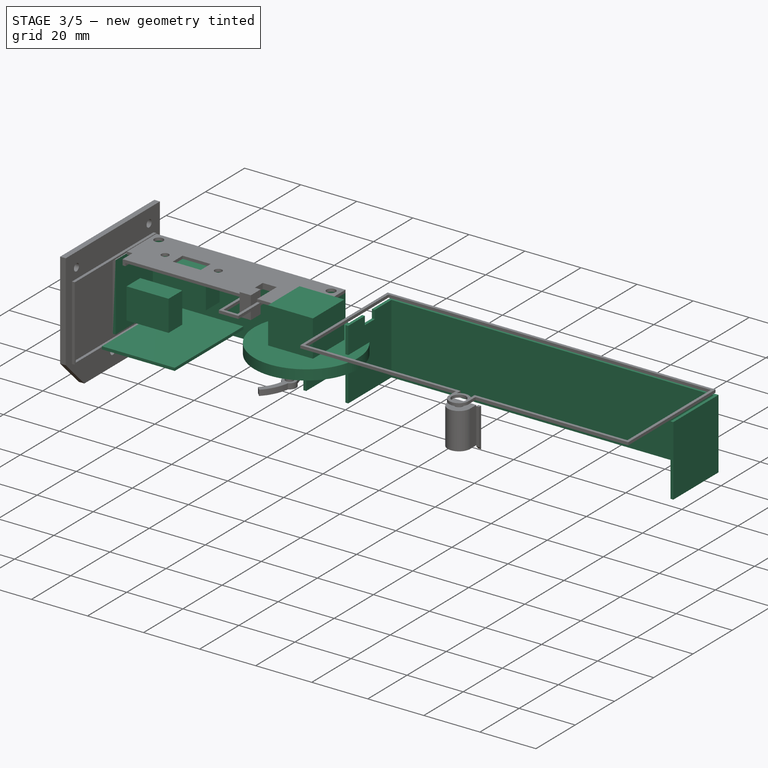
[diagram: stage 3 of 5 — iso view after this stage's code; geometry added in this stage tinted green]
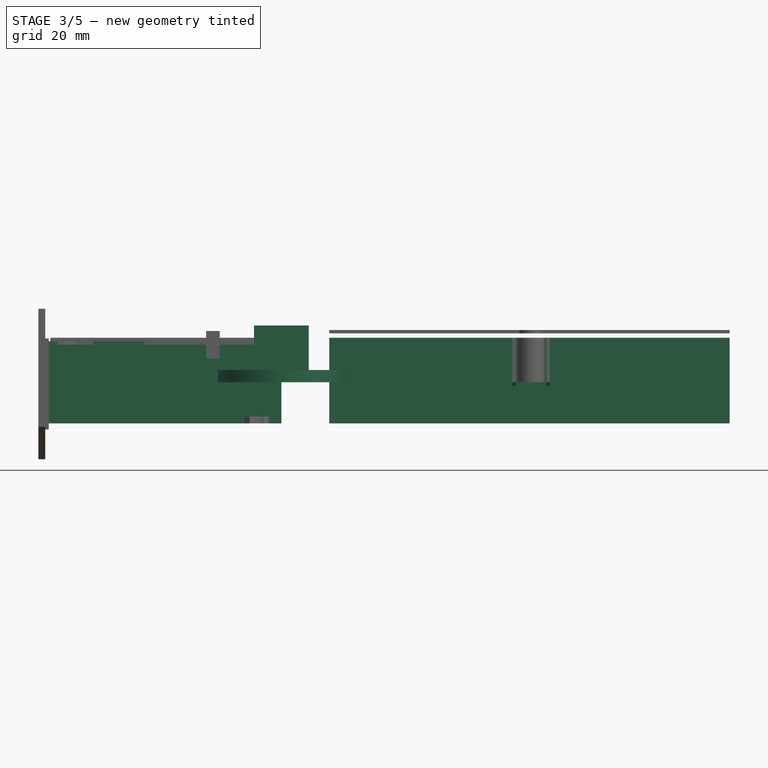
[diagram: stage 3 of 5 — front view after this stage's code; geometry added in this stage tinted green]
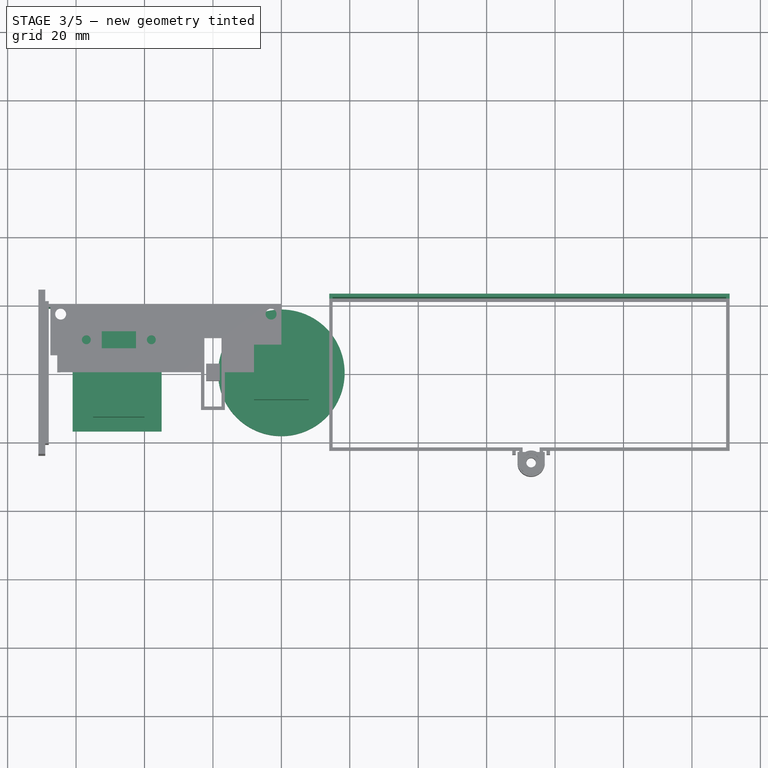
[diagram: stage 3 of 5 — top view after this stage's code; geometry added in this stage tinted green]
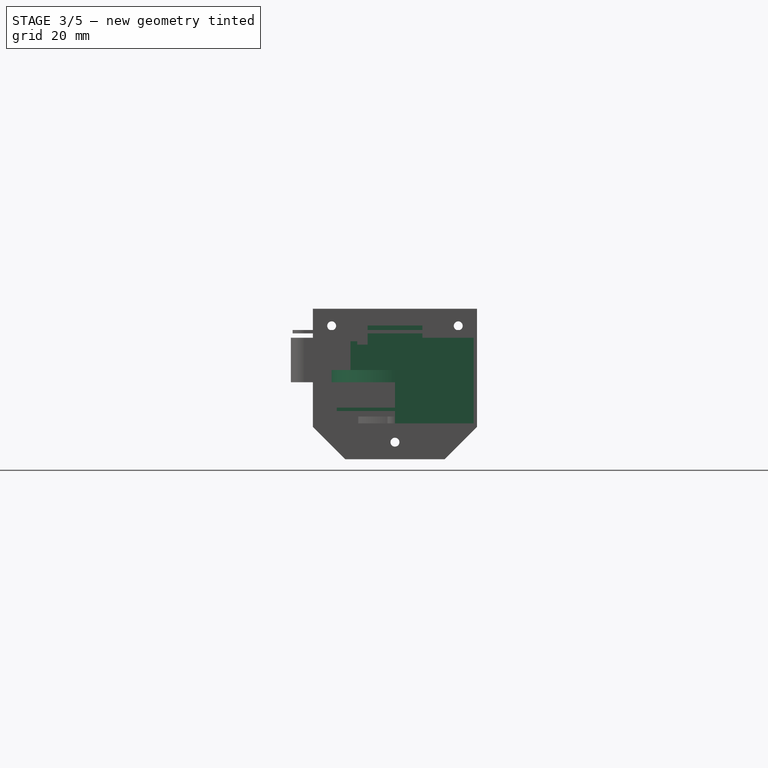
[diagram: stage 3 of 5 — right view after this stage's code; geometry added in this stage tinted green]
FEATURE [Sketcher::SketchObject] Sketch
  FullyConstrained = true
  Placement = pos=(0,0,-12) rot=(0,0,1;0rad)
  sketch-geometry (8):
    g0: LineSegment StartX=15 StartY=22 StartZ=0 EndX=130 EndY=22 EndZ=0
    g1: LineSegment StartX=130 StartY=22 StartZ=0 EndX=130 EndY=0 EndZ=0
    g2: LineSegment StartX=15 StartY=0 StartZ=0 EndX=15 EndY=22 EndZ=0
    g3: LineSegment StartX=130 StartY=0 StartZ=0 EndX=131 EndY=0 EndZ=0
    g4: LineSegment StartX=131 StartY=0 StartZ=0 EndX=131 EndY=23 EndZ=0
    g5: LineSegment StartX=131 StartY=23 StartZ=0 EndX=14 EndY=23 EndZ=0
    g6: LineSegment StartX=14 StartY=23 StartZ=0 EndX=14 EndY=0 EndZ=0
    g7: LineSegment StartX=14 StartY=0 StartZ=0 EndX=15 EndY=0 EndZ=0
  constraints (24):
    c: Coincident(g0,g1)
    c: Coincident(g2,g0)
    c: Horizontal(g0)
    c: Vertical(g1)
    c: Vertical(g2)
    c: PointOnObject(g1,g-1)
    c: DistanceY(g0) = 22
    c: Coincident(g3,g1)
    c: PointOnObject(g3,g-1)
    c: Coincident(g4,g3)
    c: Vertical(g4)
    c: Coincident(g5,g4)
    c: Horizontal(g5)
    c: Coincident(g6,g5)
    c: Vertical(g6)
    c: Horizontal(g7)
    c: DistanceX(g3,g3) = 1
    c: DistanceY(g0,g4) = 1
    c: DistanceX(g7,g7) = 1
    c: Coincident(g2,g7)
    c: DistanceX(g2,g1) = 115
    c: Coincident(g6,g7)
    c: DistanceX(g6) = 14
    c: PointOnObject(g6,g-1)
FEATURE [Part::Extrusion] Extrude
  Base = -> Sketch
  Dir = (0,0,1)
  DirMode = 2
  FaceMakerClass = Part::FaceMakerBullseye
  LengthFwd = 25
  LengthRev = 0
  Solid = true
  Symmetric = false
FEATURE [Sketcher::SketchObject] Sketch002
  FullyConstrained = true
  Placement = pos=(0,0,-12) rot=(0,0,1;0rad)
  sketch-geometry (8):
    g0: LineSegment StartX=-68 StartY=19 StartZ=0 EndX=-1 EndY=19 EndZ=0
    g1: LineSegment StartX=-68 StartY=19 StartZ=0 EndX=-68 EndY=0 EndZ=0
    g2: LineSegment StartX=-68 StartY=0 StartZ=0 EndX=-69 EndY=0 EndZ=0
    g3: LineSegment StartX=-69 StartY=0 StartZ=0 EndX=-69 EndY=20 EndZ=0
    g4: LineSegment StartX=-69 StartY=20 StartZ=0 EndX=0 EndY=20 EndZ=0
    g5: LineSegment StartX=0 StartY=20 StartZ=0 EndX=0 EndY=0 EndZ=0
    g6: LineSegment StartX=0 StartY=0 StartZ=0 EndX=-1 EndY=0 EndZ=0
    g7: LineSegment StartX=-1 StartY=0 StartZ=0 EndX=-1 EndY=19 EndZ=0
  constraints (23):
    c: Horizontal(g0)
    c: DistanceY(g0) = 19
    c: Coincident(g0,g1)
    c: Vertical(g1)
    c: Coincident(g1,g2)
    c: PointOnObject(g2,g-1)
    c: Horizontal(g2)
    c: Coincident(g2,g3)
    c: Vertical(g3)
    c: Coincident(g3,g4)
    c: PointOnObject(g4,g-2)
    c: Horizontal(g4)
    c: Coincident(g4,g5)
    c: Coincident(g5,g-1)
    c: Coincident(g5,g6)
    c: PointOnObject(g6,g-1)
    c: Coincident(g6,g7)
    c: Coincident(g7,g0)
    c: Vertical(g7)
    c: DistanceY(g0,g4) = 1
    c: DistanceX(g6,g6) = 1
    c: DistanceX(g2,g2) = 1
    c: DistanceX(g0,g0) = 67
FEATURE [Part::Extrusion] Extrude002
  Base = -> Sketch002
  Dir = (0,0,1)
  DirMode = 2
  FaceMakerClass = Part::FaceMakerBullseye
  LengthFwd = 24
  LengthRev = 0
  Solid = true
  Symmetric = false
FEATURE [Part::Cylinder] Cylinder
  Angle = 360
  AttacherType = Attacher::AttachEngine3D
  Height = 3.6
  Radius = 18.5
FEATURE [Part::Box] Box001  label="Cube"
  AttacherType = Attacher::AttachEngine3D
  Height = 13
  Length = 16
  Placement = pos=(-8,-8,3.6) rot=(0,0,1;0rad)
  Width = 16
FEATURE [Part::Box] Box002  label="circuit"
  AttacherType = Attacher::AttachEngine3D
  Height = 1
  Length = 35
  Placement = pos=(-61,18,-8.4) rot=(0,0,-1;1.5708rad)
  Width = 26
FEATURE [Part::Box] Box003  label="switch"
  AttacherType = Attacher::AttachEngine3D
  Height = 11
  Length = 15
  Placement = pos=(-55,6,1) rot=(0,0,1;0rad)
  Width = 7
FEATURE [Part::Box] Box004  label="switch001"
  AttacherType = Attacher::AttachEngine3D
  Height = 11
  Length = 15
  Placement = pos=(-55,-13,1) rot=(0,0,1;0rad)
  Width = 7
FEATURE [Sketcher::SketchObject] Sketch014
  FullyConstrained = true
  Placement = pos=(0,0,13) rot=(0,0,1;0rad)
  sketch-geometry (4):
    g0: LineSegment StartX=-3 StartY=13.5 StartZ=0 EndX=2 EndY=13.5 EndZ=0
    g1: LineSegment StartX=2 StartY=13.5 StartZ=0 EndX=2 EndY=8.5 EndZ=0
    g2: LineSegment StartX=2 StartY=8.5 StartZ=0 EndX=-3 EndY=8.5 EndZ=0
    g3: LineSegment StartX=-3 StartY=8.5 StartZ=0 EndX=-3 EndY=13.5 EndZ=0
  constraints (12):
    c: Coincident(g0,g1)
    c: Coincident(g1,g2)
    c: Coincident(g2,g3)
    c: Coincident(g3,g0)
    c: Horizontal(g0)
    c: Horizontal(g2)
    c: Vertical(g1)
    c: Vertical(g3)
    c: DistanceX(g1) = 2
    c: DistanceY(g1) = 8.5
    c: DistanceX(g2,g0) = 5
    c: DistanceY(g2,g0) = 5
FEATURE [Sketcher::SketchObject] Sketch015
  FullyConstrained = true
  Placement = pos=(0,0,14) rot=(0,0,1;0rad)
  sketch-geometry (4):
    g0: LineSegment StartX=12 StartY=13.5 StartZ=0 EndX=17 EndY=13.5 EndZ=0
    g1: LineSegment StartX=17 StartY=13.5 StartZ=0 EndX=17 EndY=8.5 EndZ=0
    g2: LineSegment StartX=17 StartY=8.5 StartZ=0 EndX=12 EndY=8.5 EndZ=0
    g3: LineSegment StartX=12 StartY=8.5 StartZ=0 EndX=12 EndY=13.5 EndZ=0
  constraints (12):
    c: Coincident(g0,g1)
    c: Coincident(g1,g2)
    c: Coincident(g2,g3)
    c: Coincident(g3,g0)
    c: Horizontal(g0)
    c: Horizontal(g2)
    c: Vertical(g1)
    c: Vertical(g3)
    c: DistanceX(g2,g0) = 5
    c: DistanceY(g2,g0) = 5
    c: DistanceX(g2) = 12
    c: DistanceY(g2) = 8.5
FEATURE [Part::Extrusion] Extrude014
  Base = -> Sketch014
  Dir = (0,0,1)
  DirMode = 2
  FaceMakerClass = Part::FaceMakerBullseye
  LengthFwd = 0
  LengthRev = 5
  Solid = true
  Symmetric = false
FEATURE [Part::Extrusion] Extrude015
  Base = -> Sketch015
  Dir = (0,0,1)
  DirMode = 2
  FaceMakerClass = Part::FaceMakerBullseye
  LengthFwd = 0
  LengthRev = 4
  Solid = true
  Symmetric = false
FEATURE [Part::Cut] Cut002
  Base = -> Extrude002
  Tool = -> Extrude014
FEATURE [Part::Cut] Cut003
  Base = -> Extrude
  Tool = -> Extrude015
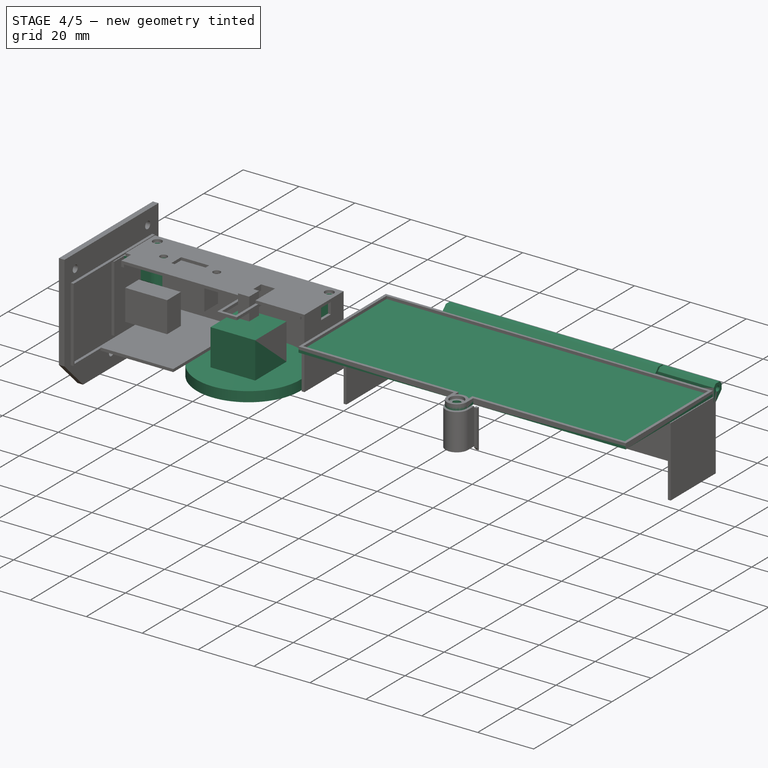
[diagram: stage 4 of 5 — iso view after this stage's code; geometry added in this stage tinted green]
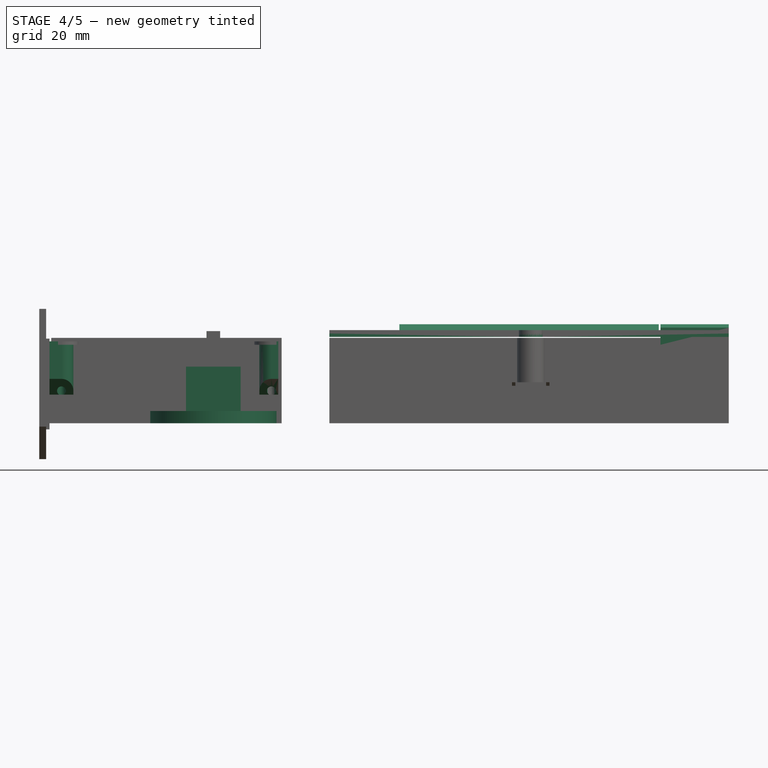
[diagram: stage 4 of 5 — front view after this stage's code; geometry added in this stage tinted green]
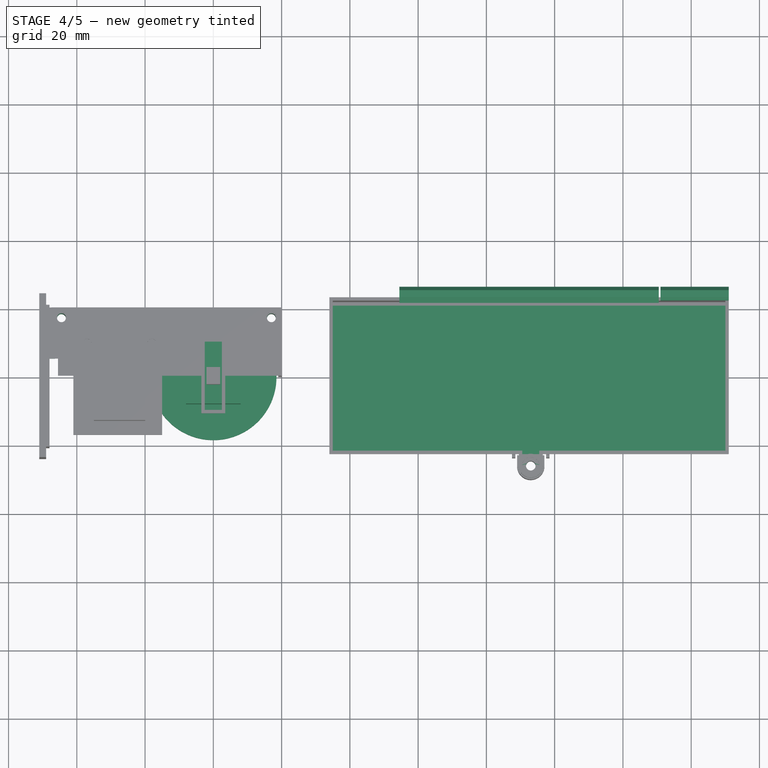
[diagram: stage 4 of 5 — top view after this stage's code; geometry added in this stage tinted green]
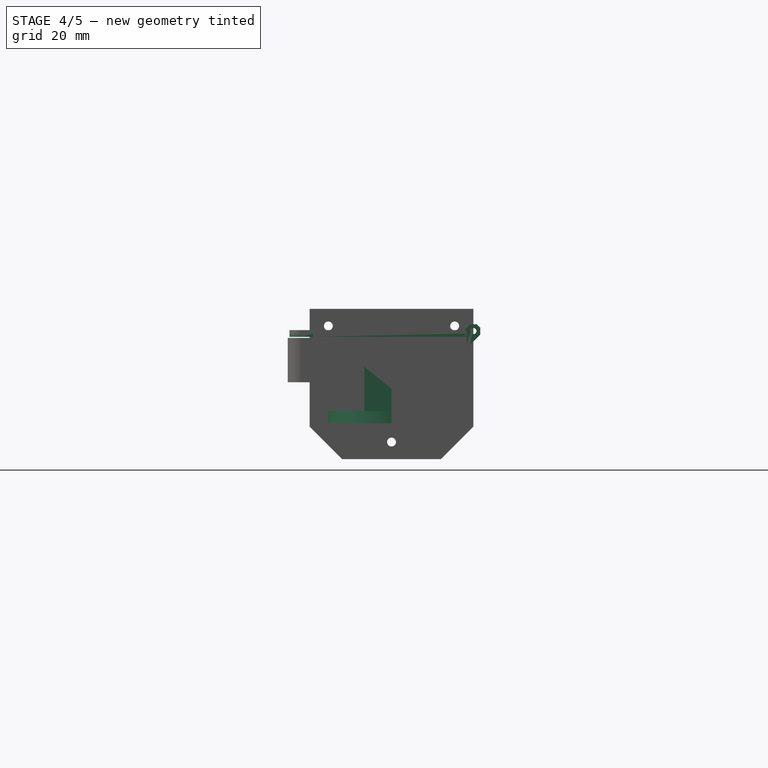
[diagram: stage 4 of 5 — right view after this stage's code; geometry added in this stage tinted green]
FEATURE [Sketcher::SketchObject] Sketch008
  FullyConstrained = true
  Placement = pos=(0,0,12) rot=(0,0,1;0rad)
  expr: Constraints[0] = Spreadsheet.m2_6_r1
  expr: Constraints[1] = Spreadsheet.m2_6_r1
  sketch-geometry (12):
    g0: Circle CenterX=-64.5 CenterY=17 CenterZ=0 NormalX=0 NormalY=0 NormalZ=1 AngleXU=0 Radius=1.3
    g1: Circle CenterX=-3 CenterY=17 CenterZ=0 NormalX=0 NormalY=0 NormalZ=1 AngleXU=0 Radius=1.3
    g2: ArcOfCircle CenterX=-64.5 CenterY=17 CenterZ=0 NormalX=0 NormalY=0 NormalZ=1 AngleXU=0 Radius=3.5 StartAngle=4.71239 EndAngle=6.28319
    g3: LineSegment StartX=-61 StartY=17 StartZ=0 EndX=-61 EndY=19 EndZ=0
    g4: LineSegment StartX=-61 StartY=19 StartZ=0 EndX=-68 EndY=19 EndZ=0
    g5: LineSegment StartX=-68 StartY=19 StartZ=0 EndX=-68 EndY=13.5 EndZ=0
    g6: LineSegment StartX=-68 StartY=13.5 StartZ=0 EndX=-64.5 EndY=13.5 EndZ=0
    g7: ArcOfCircle CenterX=-3 CenterY=17 CenterZ=0 NormalX=0 NormalY=0 NormalZ=1 AngleXU=0 Radius=3.5 StartAngle=3.14159 EndAngle=4.71239
    g8: LineSegment StartX=-1 StartY=19 StartZ=0 EndX=-1 EndY=13.5 EndZ=0
    g9: LineSegment StartX=-1 StartY=13.5 StartZ=0 EndX=-3 EndY=13.5 EndZ=0
    g10: LineSegment StartX=-1 StartY=19 StartZ=0 EndX=-6.5 EndY=19 EndZ=0
    g11: LineSegment StartX=-6.5 StartY=19 StartZ=0 EndX=-6.5 EndY=17 EndZ=0
  constraints (35):
    c: Radius(g0) = 1.3
    c: Radius(g1) = 1.3
    c: DistanceX(g1) = -3
    c: DistanceY(g1) = 17
    c: DistanceX(g0) = -64.5
    c: Horizontal(g0,g1)
    c: Coincident(g2,g0)
    c: Horizontal(g2,g0)
    c: Vertical(g2,g0)
    c: Tangent(g2,g3) = -1.5708
    c: Coincident(g3,g4)
    c: Horizontal(g4)
    c: Coincident(g4,g5)
    c: Vertical(g5)
    c: Coincident(g5,g6)
    c: Coincident(g6,g2)
    c: Horizontal(g6)
    c: DistanceX(g4,g4) = 7
    c: DistanceY(g5,g5) = 5.5
    c: Radius(g2) = 3.5
    c: Coincident(g7,g1)
    c: Vertical(g8)
    c: Coincident(g8,g9)
    c: Coincident(g9,g7)
    c: Horizontal(g9)
    c: Coincident(g8,g10)
    c: Horizontal(g10)
    c: Coincident(g10,g11)
    c: Coincident(g11,g7)
    c: Vertical(g11)
    c: DistanceX(g10,g10) = 5.5
    c: DistanceY(g8,g8) = 5.5
    c: Radius(g7) = 3.5
    c: Horizontal(g1,g7)
    c: Vertical(g7,g1)
FEATURE [Part::Extrusion] Extrude008
  Base = -> Sketch008
  Dir = (0,0,1)
  DirMode = 2
  FaceMakerClass = Part::FaceMakerBullseye
  LengthFwd = 0
  LengthRev = 15.6
  Solid = true
  Symmetric = false
FEATURE [Sketcher::SketchObject] Sketch009
  FullyConstrained = true
  Placement = pos=(0,0,0) rot=(0.57735,0.57735,0.57735;2.0944rad)
  sketch-geometry (3):
    g0: LineSegment StartX=12 StartY=2.5 StartZ=0 EndX=18.5 EndY=-4 EndZ=0
    g1: LineSegment StartX=12 StartY=2.5 StartZ=0 EndX=12 EndY=-4 EndZ=0
    g2: LineSegment StartX=12 StartY=-4 StartZ=0 EndX=18.5 EndY=-4 EndZ=0
  constraints (9):
    c: Coincident(g0,g1)
    c: Vertical(g1)
    c: Coincident(g1,g2)
    c: Coincident(g2,g0)
    c: Horizontal(g2)
    c: DistanceX(g0,g0) = 6.5
    c: DistanceY(g0,g0) = -6.5
    c: DistanceX(g1) = 12
    c: DistanceY(g1) = -4
FEATURE [Part::Extrusion] Extrude009
  Base = -> Sketch009
  Dir = (1,0,0)
  DirMode = 2
  FaceMakerClass = Part::FaceMakerBullseye
  LengthFwd = 0
  LengthRev = 69
  Solid = true
  Symmetric = false
FEATURE [Part::Cut] Cut001
  Base = -> Extrude008
  Tool = -> Extrude009
FEATURE [Sketcher::SketchObject] Sketch010
  FullyConstrained = true
  Placement = pos=(0,5,0) rot=(1,0,0;1.5708rad)
  sketch-geometry (3):
    g0: LineSegment StartX=-68 StartY=12 StartZ=0 EndX=-66.4 EndY=12 EndZ=0
    g1: LineSegment StartX=-66.4 StartY=12 StartZ=0 EndX=-68 EndY=10.4 EndZ=0
    g2: LineSegment StartX=-68 StartY=10.4 StartZ=0 EndX=-68 EndY=12 EndZ=0
  constraints (9):
    c: Horizontal(g0)
    c: Coincident(g0,g1)
    c: Coincident(g1,g2)
    c: Coincident(g2,g0)
    c: Vertical(g2)
    c: DistanceX(g1,g0) = 1.6
    c: DistanceY(g1,g0) = 1.6
    c: DistanceX(g0) = -68
    c: DistanceY(g0) = 12
FEATURE [Part::Extrusion] Extrude010
  Base = -> Sketch010
  Dir = (0,-1,-2e-16)
  DirMode = 2
  FaceMakerClass = Part::FaceMakerBullseye
  LengthFwd = 0
  LengthRev = 8.5
  Solid = true
  Symmetric = false
FEATURE [Sketcher::SketchObject] Sketch011
  FullyConstrained = true
  Placement = pos=(131,0,0) rot=(0.57735,0.57735,0.57735;2.0944rad)
  sketch-geometry (8):
    g0: Circle CenterX=24 CenterY=15 CenterZ=0 NormalX=0 NormalY=0 NormalZ=1 AngleXU=0 Radius=0.9
    g1: LineSegment StartX=22 StartY=11 StartZ=0 EndX=23 EndY=11 EndZ=0
    g2: LineSegment StartX=23 StartY=11 StartZ=0 EndX=26 EndY=14 EndZ=0
    g3: LineSegment StartX=26 StartY=16 StartZ=0 EndX=25 EndY=17 EndZ=0
    g4: LineSegment StartX=25 StartY=17 StartZ=0 EndX=23 EndY=17 EndZ=0
    g5: LineSegment StartX=23 StartY=17 StartZ=0 EndX=22 EndY=16 EndZ=0
    g6: LineSegment StartX=22 StartY=16 StartZ=0 EndX=22 EndY=11 EndZ=0
    g7: LineSegment StartX=26 StartY=16 StartZ=0 EndX=26 EndY=14 EndZ=0
  constraints (24):
    c: Horizontal(g1)
    c: Coincident(g1,g2)
    c: Coincident(g3,g4)
    c: Horizontal(g4)
    c: Coincident(g4,g5)
    c: Coincident(g6,g5)
    c: Vertical(g6)
    c: Coincident(g7,g3)
    c: Coincident(g7,g2)
    c: Vertical(g7)
    c: Coincident(g1,g6)
    c: DistanceY(g6,g6) = 5
    c: DistanceX(g4,g4) = 2
    c: DistanceY(g7,g7) = 2
    c: DistanceX(g1,g1) = 1
    c: DistanceX(g1,g2) = 3
    c: DistanceY(g1,g2) = 3
    c: DistanceX(g5,g4) = 1
    c: DistanceY(g5,g4) = 1
    c: DistanceX(g0,g1) = -2
    c: DistanceY(g0,g1) = -4
    c: DistanceX(g1) = 22
    c: DistanceY(g1) = 11
    c: Radius(g0) = 0.9
FEATURE [Part::Extrusion] Extrude011
  Base = -> Sketch011
  Dir = (1,-2e-16,2e-16)
  DirMode = 2
  FaceMakerClass = Part::FaceMakerBullseye
  LengthFwd = 0
  LengthRev = 20
  Solid = true
  Symmetric = false
FEATURE [PartDesign::FeatureBase] Clone002
  BaseFeature = -> Extrude011
FEATURE [PartDesign::Body] Body002
  BaseFeature = -> Extrude011
  Group = -> [Clone002]
  Origin = -> Origin002
  Placement = pos=(-97,0,0) rot=(0,0,1;0rad)
  Tip = -> Clone002
FEATURE [Sketcher::SketchObject] Sketch012
  FullyConstrained = true
  Placement = pos=(110.5,0,0) rot=(0.57735,0.57735,0.57735;2.0944rad)
  sketch-geometry (8):
    g0: Circle CenterX=24 CenterY=15 CenterZ=0 NormalX=0 NormalY=0 NormalZ=1 AngleXU=0 Radius=0.9
    g1: LineSegment StartX=25 StartY=13.3 StartZ=0 EndX=26 EndY=14.3 EndZ=0
    g2: LineSegment StartX=26 StartY=16 StartZ=0 EndX=25 EndY=17 EndZ=0
    g3: LineSegment StartX=25 StartY=17 StartZ=0 EndX=23 EndY=17 EndZ=0
    g4: LineSegment StartX=23 StartY=17 StartZ=0 EndX=21.3 EndY=15.3 EndZ=0
    g5: LineSegment StartX=26 StartY=16 StartZ=0 EndX=26 EndY=14.3 EndZ=0
    g6: LineSegment StartX=25 StartY=13.3 StartZ=0 EndX=21.3 EndY=13.3 EndZ=0
    g7: LineSegment StartX=21.3 StartY=15.3 StartZ=0 EndX=21.3 EndY=13.3 EndZ=0
  constraints (24):
    c: Coincident(g2,g3)
    c: Horizontal(g3)
    c: Coincident(g3,g4)
    c: Coincident(g5,g2)
    c: Coincident(g5,g1)
    c: Vertical(g5)
    c: DistanceX(g2,g2) = 1
    c: DistanceY(g2,g2) = -1
    c: DistanceX(g1,g1) = 1
    c: DistanceY(g1,g1) = 1
    c: Radius(g0) = 0.9
    c: DistanceX(g0) = 24
    c: DistanceY(g0) = 15
    c: DistanceY(g1,g0) = 1.7
    c: DistanceY(g0,g2) = 2
    c: DistanceX(g0,g2) = 2
    c: Coincident(g6,g1)
    c: Horizontal(g6)
    c: Coincident(g7,g6)
    c: Vertical(g7)
    c: Coincident(g4,g7)
    c: Angle(g3,g4,g3) = 0.785398
    c: DistanceX(g3,g3) = 2
    c: DistanceX(g6,g6) = 3.7
FEATURE [Part::Extrusion] Extrude012
  Base = -> Sketch012
  Dir = (1,-2e-16,2e-16)
  DirMode = 2
  FaceMakerClass = Part::FaceMakerBullseye
  LengthFwd = 0
  LengthRev = 76
  Solid = true
  Symmetric = false
FEATURE [Sketcher::SketchObject] Sketch013
  FullyConstrained = false
  Placement = pos=(0,0,13.3) rot=(0,0,1;0rad)
  expr: Constraints[14] = Spreadsheet.r1_2_56
  sketch-geometry (9):
    g0: LineSegment StartX=14 StartY=21.5 StartZ=0 EndX=131 EndY=21.5 EndZ=0
    g1: LineSegment StartX=131 StartY=21.5 StartZ=0 EndX=131 EndY=-23 EndZ=0
    g2: LineSegment StartX=14 StartY=-23 StartZ=0 EndX=14 EndY=21.5 EndZ=0
    g3: LineSegment StartX=14 StartY=-23 StartZ=0 EndX=69.5 EndY=-23 EndZ=0
    g4: LineSegment StartX=131 StartY=-23 StartZ=0 EndX=76.5 EndY=-23 EndZ=0
    g5: Circle CenterX=73 CenterY=-26.4 CenterZ=0 NormalX=0 NormalY=0 NormalZ=1 AngleXU=0 Radius=1.4
    g6: ArcOfCircle CenterX=73 CenterY=-26.4 CenterZ=0 NormalX=0 NormalY=0 NormalZ=1 AngleXU=0 Radius=3.5 StartAngle=3.14159 EndAngle=6.28319
    g7: LineSegment StartX=69.5 StartY=-23 StartZ=0 EndX=69.5 EndY=-26.4 EndZ=0
    g8: LineSegment StartX=76.5 StartY=-23 StartZ=0 EndX=76.5 EndY=-26.4 EndZ=0
  constraints (26):
    c: Coincident(g0,g1)
    c: Coincident(g2,g0)
    c: Horizontal(g0)
    c: Vertical(g1)
    c: Vertical(g2)
    c: DistanceX(g2,g0) = 117
    c: DistanceY(g2,g0) = 44.5
    c: DistanceX(g0) = 14
    c: DistanceY(g0) = 21.5
    c: Coincident(g3,g2)
    c: Horizontal(g3)
    c: Coincident(g4,g1)
    c: Horizontal(g4)
    c: Coincident(g6,g5)
    c: Radius(g5) = 1.4
    c: Radius(g6) = 3.5
    c: Coincident(g7,g6)
    c: Vertical(g7)
    c: Coincident(g8,g6)
    c: Vertical(g8)
    c: Coincident(g3,g7)
    c: Coincident(g4,g8)
    c: Horizontal(g6,g5)
    c: Horizontal(g5,g6)
    c: DistanceY(g5) = -26.4
    c: DistanceX(g5) = 73
FEATURE [Part::Extrusion] Extrude013
  Base = -> Sketch013
  Dir = (0,0,1)
  DirMode = 2
  FaceMakerClass = Part::FaceMakerBullseye
  LengthFwd = 1
  LengthRev = 0
  Solid = true
  Symmetric = false
FEATURE [Part::Compound] Compound005  label="pot"
  Links = -> [Cylinder,Box001]
  Placement = pos=(-20,0,-12) rot=(0,0,1;0rad)
FEATURE [Part::Compound] Compound003  label="battery cover"
  Links = -> [Extrude012,Extrude013,Extrude016,Sweep]
FEATURE [PartDesign::FeatureBase] Clone003
  BaseFeature = -> Compound003
FEATURE [PartDesign::Body] Body003
  BaseFeature = -> Compound003
  Group = -> [Clone003]
  Origin = -> Origin003
  Placement = pos=(0,-24,-10) rot=(0,0,1;0rad)
  Tip = -> Clone003
FEATURE [Part::Compound] Compound004  label="lid pivot"
  Links = -> [Body003]
  Placement = pos=(0,24,10) rot=(0,0,1;0rad)
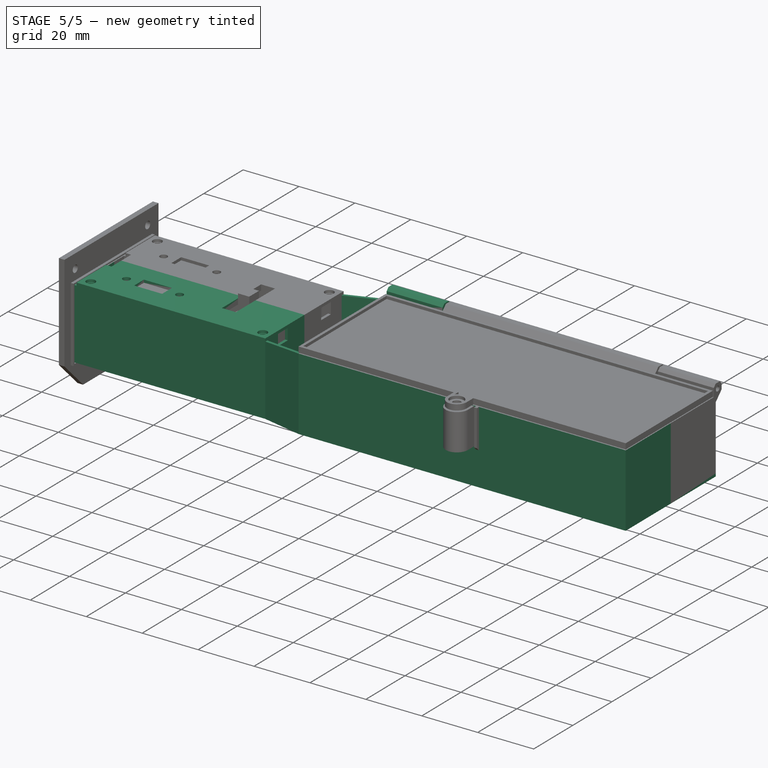
[diagram: stage 5 of 5 — iso view after this stage's code; geometry added in this stage tinted green]
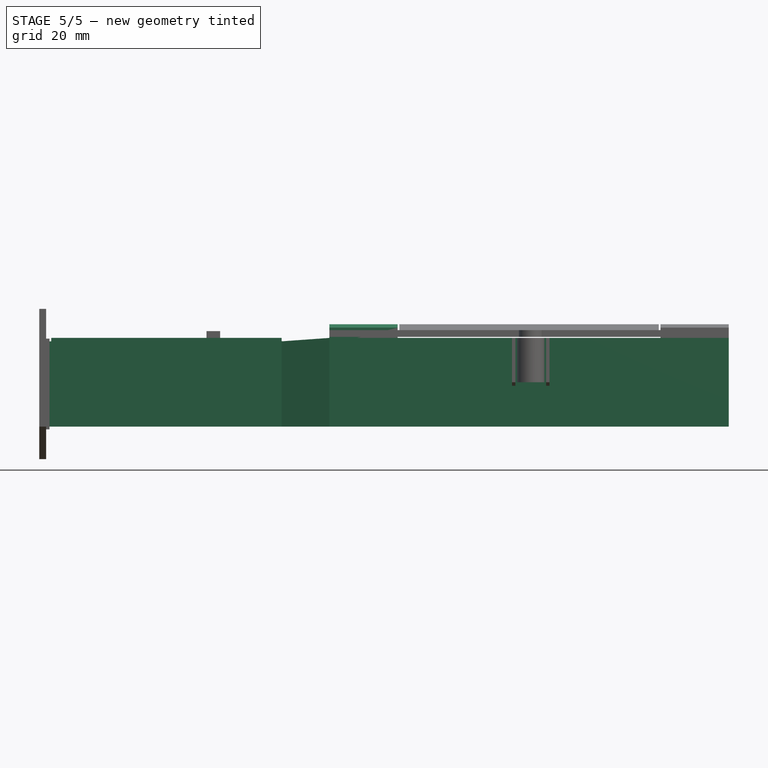
[diagram: stage 5 of 5 — front view after this stage's code; geometry added in this stage tinted green]
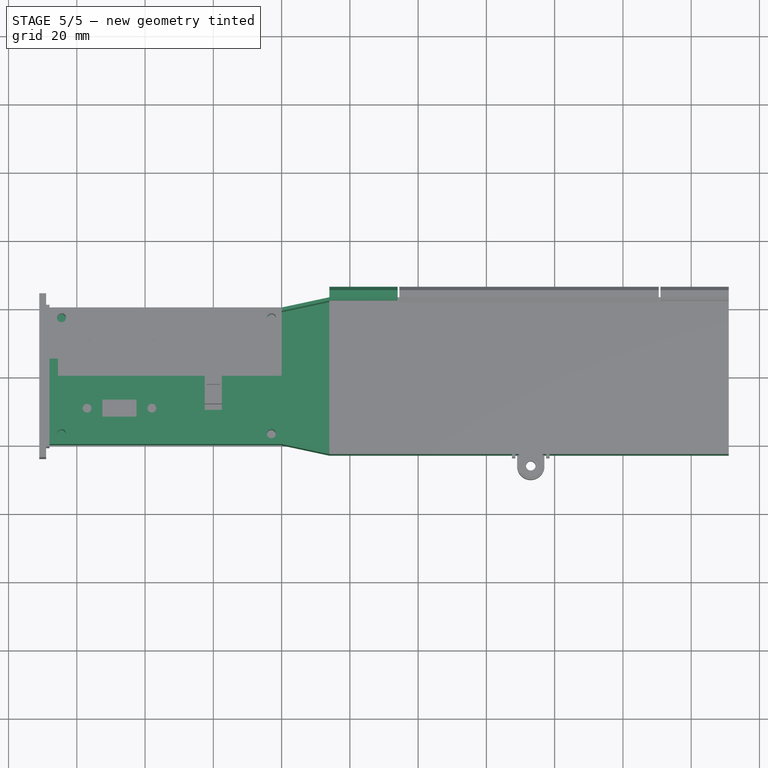
[diagram: stage 5 of 5 — top view after this stage's code; geometry added in this stage tinted green]
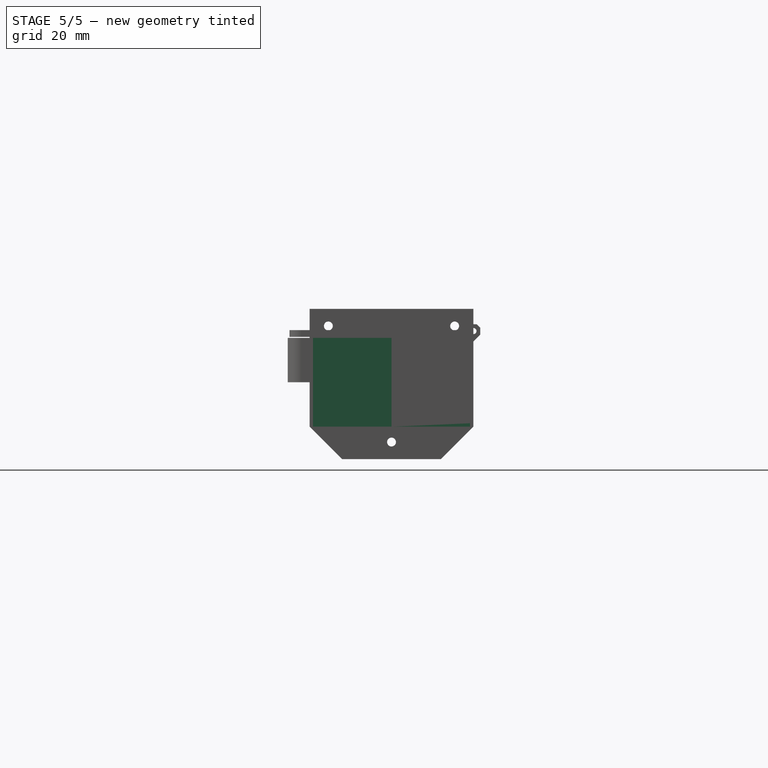
[diagram: stage 5 of 5 — right view after this stage's code; geometry added in this stage tinted green]
FEATURE [Part::Box] Box  label="battery"
  AttacherType = Attacher::AttachEngine3D
  Height = 25
  Length = 115
  Placement = pos=(15,-22,-12) rot=(0,0,1;0rad)
  Width = 44
FEATURE [Sketcher::SketchObject] Sketch003
  FullyConstrained = true
  Placement = pos=(0,0,-12) rot=(0,0,1;0rad)
  sketch-geometry (4):
    g0: LineSegment StartX=0 StartY=20 StartZ=0 EndX=14 EndY=23 EndZ=0
    g1: LineSegment StartX=14 StartY=22 StartZ=0 EndX=0 EndY=19 EndZ=0
    g2: LineSegment StartX=0 StartY=20 StartZ=0 EndX=0 EndY=19 EndZ=0
    g3: LineSegment StartX=14 StartY=23 StartZ=0 EndX=14 EndY=22 EndZ=0
  constraints (12):
    c: Coincident(g2,g0)
    c: Coincident(g2,g1)
    c: Vertical(g2)
    c: Coincident(g3,g0)
    c: Coincident(g3,g1)
    c: Vertical(g3)
    c: DistanceY(g2,g2) = 1
    c: DistanceY(g3,g3) = 1
    c: DistanceX(g0,g0) = 14
    c: DistanceY(g0,g0) = 3
    c: DistanceY(g0) = 23
    c: PointOnObject(g1,g-2)
FEATURE [Part::Extrusion] Extrude003
  Base = -> Sketch003
  Dir = (0,0,1)
  DirMode = 2
  FaceMakerClass = Part::FaceMakerBullseye
  LengthFwd = 25
  LengthRev = 0
  Solid = true
  Symmetric = false
FEATURE [Sketcher::SketchObject] Sketch004
  FullyConstrained = false
  MapMode = 3
  Placement = pos=(0,0,-12) rot=(1,0,0;1.5708rad)
  Support = -> [Sketch003]
  sketch-geometry (6):
    g0: LineSegment StartX=-1 StartY=24 StartZ=0 EndX=0 EndY=24 EndZ=0
    g1: LineSegment StartX=0 StartY=24 StartZ=0 EndX=14 EndY=25 EndZ=0
    g2: LineSegment StartX=14 StartY=25 StartZ=0 EndX=15 EndY=25 EndZ=0
    g3: LineSegment StartX=15 StartY=25 StartZ=0 EndX=15 EndY=27 EndZ=0
    g4: LineSegment StartX=15 StartY=27 StartZ=0 EndX=-1 EndY=27 EndZ=0
    g5: LineSegment StartX=-1 StartY=27 StartZ=0 EndX=-1 EndY=24 EndZ=0
  constraints (12):
    c: PointOnObject(g0,g-2)
    c: Horizontal(g0)
    c: Coincident(g0,g1)
    c: Coincident(g1,g2)
    c: Horizontal(g2)
    c: Coincident(g2,g3)
    c: Vertical(g3)
    c: Coincident(g3,g4)
    c: Horizontal(g4)
    c: Coincident(g4,g5)
    c: Coincident(g5,g0)
    c: Vertical(g5)
FEATURE [Part::Extrusion] Extrude004
  Base = -> Sketch004
  Dir = (0,-1,2e-16)
  DirMode = 2
  FaceMakerClass = Part::FaceMakerBullseye
  LengthFwd = 0
  LengthRev = 10
  Placement = pos=(0,15,0) rot=(0,0,1;0rad)
  Solid = true
  Symmetric = false
FEATURE [Part::Cut] Cut
  Base = -> Extrude003
  Tool = -> Extrude004
FEATURE [Sketcher::SketchObject] Sketch005
  FullyConstrained = true
  Placement = pos=(0,0,-12) rot=(0,0,1;0rad)
  expr: Constraints[16] = Spreadsheet.r1_2_56
  expr: Constraints[15] = Spreadsheet.r1_2_56
  sketch-geometry (10):
    g0: LineSegment StartX=-69 StartY=0 StartZ=0 EndX=-69 EndY=20 EndZ=0
    g1: LineSegment StartX=-69 StartY=20 StartZ=0 EndX=0 EndY=20 EndZ=0
    g2: LineSegment StartX=0 StartY=20 StartZ=0 EndX=14 EndY=23 EndZ=0
    g3: LineSegment StartX=14 StartY=23 StartZ=0 EndX=131 EndY=23 EndZ=0
    g4: LineSegment StartX=131 StartY=23 StartZ=0 EndX=131 EndY=0 EndZ=0
    g5: ArcOfCircle CenterX=-34 CenterY=0 CenterZ=0 NormalX=0 NormalY=0 NormalZ=1 AngleXU=0 Radius=1.4 StartAngle=0 EndAngle=3.14159
    g6: ArcOfCircle CenterX=-6 CenterY=0 CenterZ=0 NormalX=0 NormalY=0 NormalZ=1 AngleXU=0 Radius=1.4 StartAngle=0 EndAngle=3.14159
    g7: LineSegment StartX=-69 StartY=0 StartZ=0 EndX=-35.4 EndY=0 EndZ=0
    g8: LineSegment StartX=-32.6 StartY=0 StartZ=0 EndX=-7.4 EndY=0 EndZ=0
    g9: LineSegment StartX=-4.6 StartY=0 StartZ=0 EndX=131 EndY=0 EndZ=0
  constraints (32):
    c: Vertical(g0)
    c: Coincident(g0,g1)
    c: PointOnObject(g1,g-2)
    c: Horizontal(g1)
    c: Coincident(g1,g2)
    c: Coincident(g2,g3)
    c: Horizontal(g3)
    c: Coincident(g3,g4)
    c: PointOnObject(g4,g-1)
    c: Vertical(g4)
    c: DistanceX(g0) = -69
    c: DistanceY(g0,g0) = 20
    c: DistanceX(g2) = 14
    c: DistanceY(g2) = 23
    c: DistanceX(g3,g3) = 117
    c: Radius(g6) = 1.4
    c: Radius(g5) = 1.4
    c: DistanceX(g5,g6) = 28
    c: DistanceX(g6) = -6
    c: Coincident(g7,g0)
    c: Coincident(g7,g5)
    c: Horizontal(g7)
    c: Coincident(g8,g5)
    c: Coincident(g8,g6)
    c: Horizontal(g8)
    c: Coincident(g9,g6)
    c: Coincident(g9,g4)
    c: Horizontal(g9)
    c: Horizontal(g5,g5)
    c: Horizontal(g5,g5)
    c: Horizontal(g6,g6)
    c: Horizontal(g6,g6)
FEATURE [Part::Extrusion] Extrude005
  Base = -> Sketch005
  Dir = (0,0,1)
  DirMode = 2
  FaceMakerClass = Part::FaceMakerBullseye
  LengthFwd = 0
  LengthRev = 1
  Solid = true
  Symmetric = false
FEATURE [Part::Compound] Compound
  Links = -> [Cut,Extrude005,Cut001,Cut002,Cut003,Extrude010]
FEATURE [PartDesign::FeatureBase] Clone
  BaseFeature = -> Compound
FEATURE [PartDesign::Body] Body
  BaseFeature = -> Compound
  Group = -> [Clone]
  Origin = -> Origin
  Tip = -> Clone
FEATURE [Part::Mirroring] Part__Mirroring  label="Body (Mirror #1)"
  Base = (0,0,0)
  Normal = (0,1,0)
  Source = -> Body
FEATURE [PartDesign::FeatureBase] Clone001
  BaseFeature = -> Compound007
FEATURE [PartDesign::Body] Body001
  BaseFeature = -> Compound007
  Group = -> [Clone001]
  Origin = -> Origin001
  Tip = -> Clone001
FEATURE [Part::Mirroring] Part__Mirroring001  label="Body001 (Mirror #2)"
  Base = (0,0,0)
  Normal = (0,1,0)
  Source = -> Body001
FEATURE [Part::Compound] Compound001  label="electronical cover"
  Links = -> [Part__Mirroring001,Compound007,Extrude020]
FEATURE [Part::Compound] Compound002  label="handle"
  Links = -> [Part__Mirroring,Compound,Body002,Extrude011,Cut004,Extrude024,Part__Mirroring003]
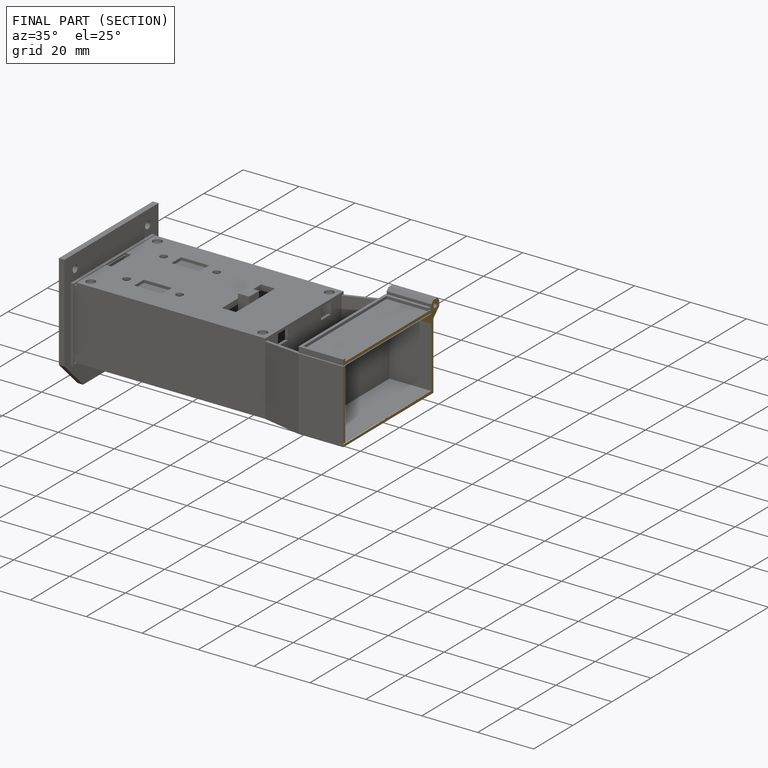
[diagram: finished part — half-section view (interior)]
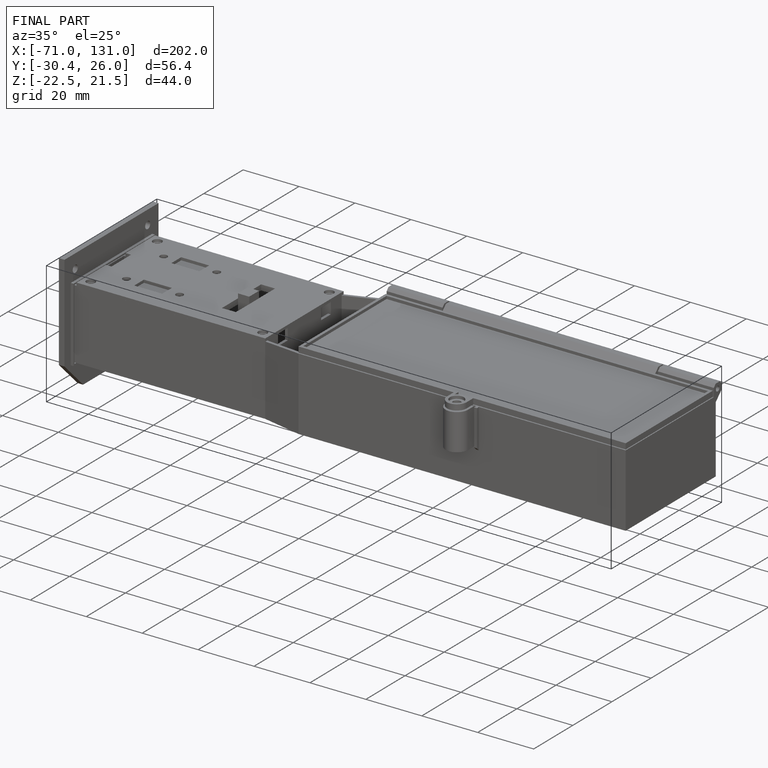
[diagram: finished part — iso view with bounding-box wireframe]
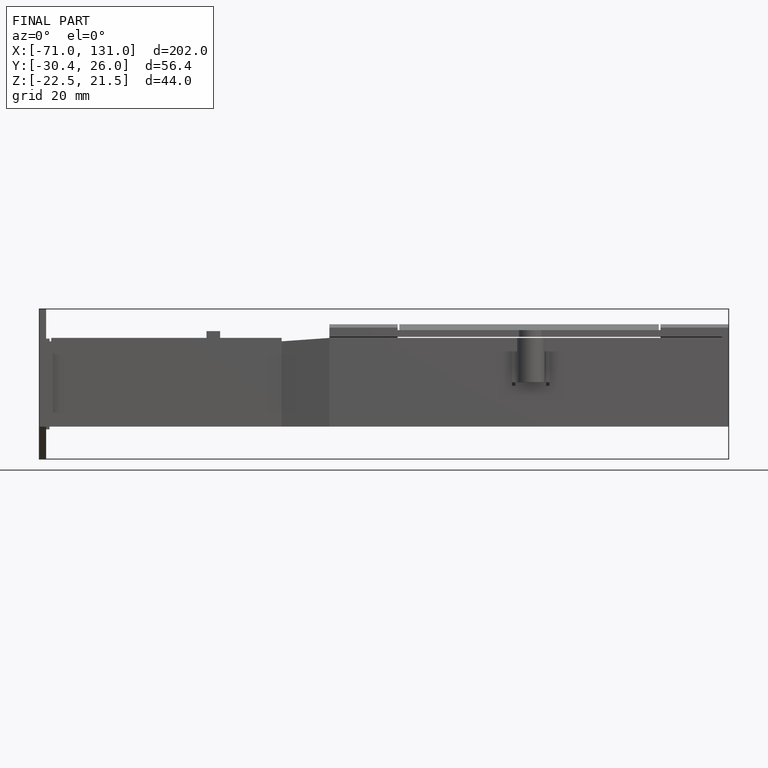
[diagram: finished part — front view with bounding-box wireframe]
